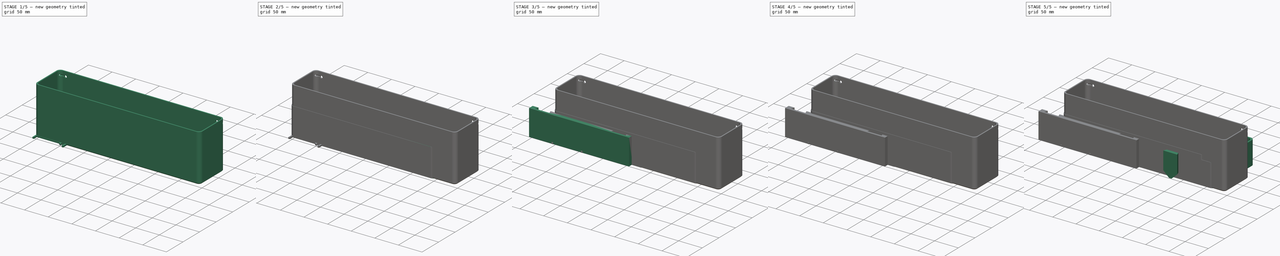
[diagram: build sequence overview — one tinted view per stage of 5, left to right]
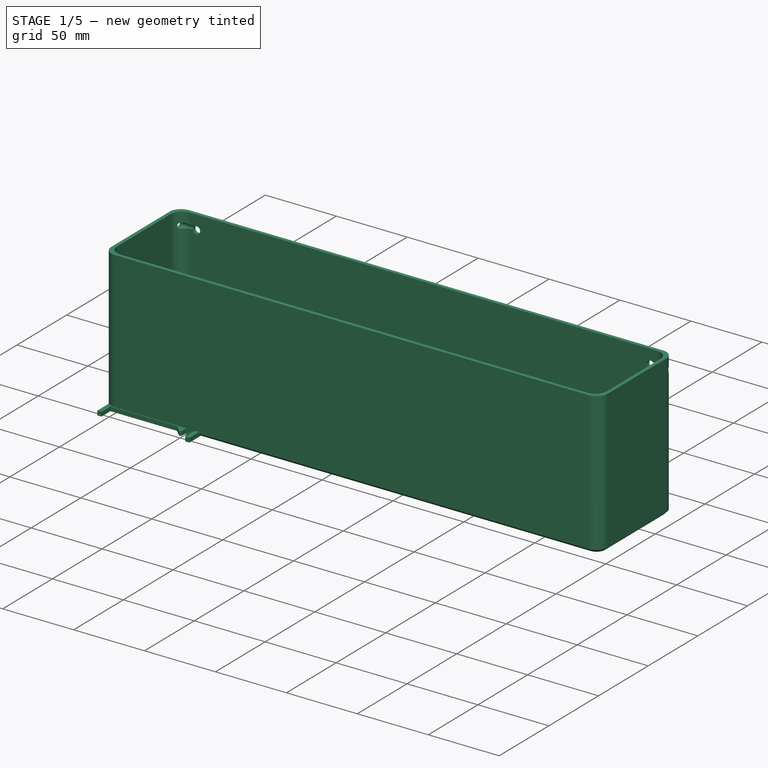
[diagram: stage 1 of 5 — iso view after this stage's code; geometry added in this stage tinted green]
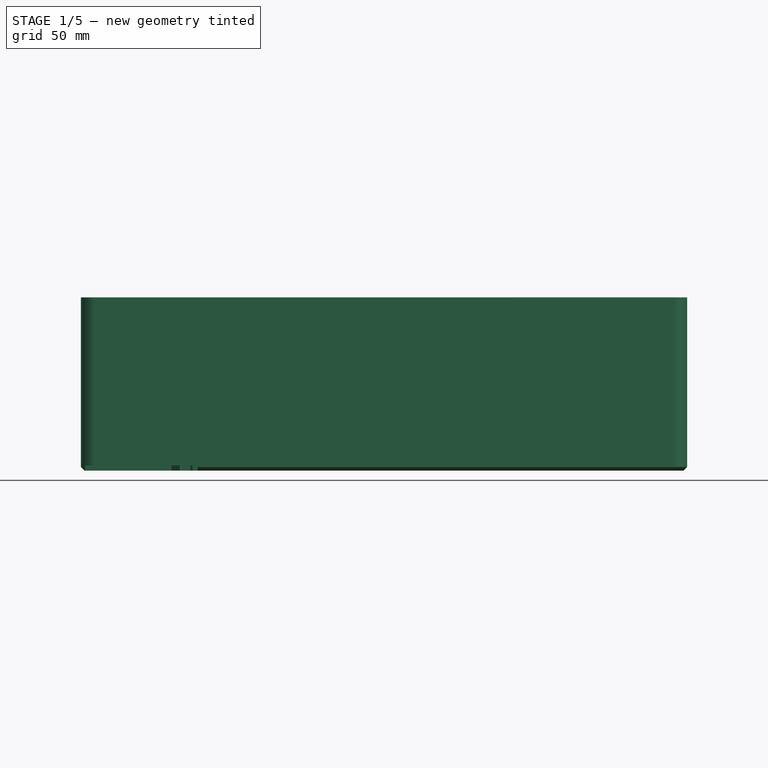
[diagram: stage 1 of 5 — front view after this stage's code; geometry added in this stage tinted green]
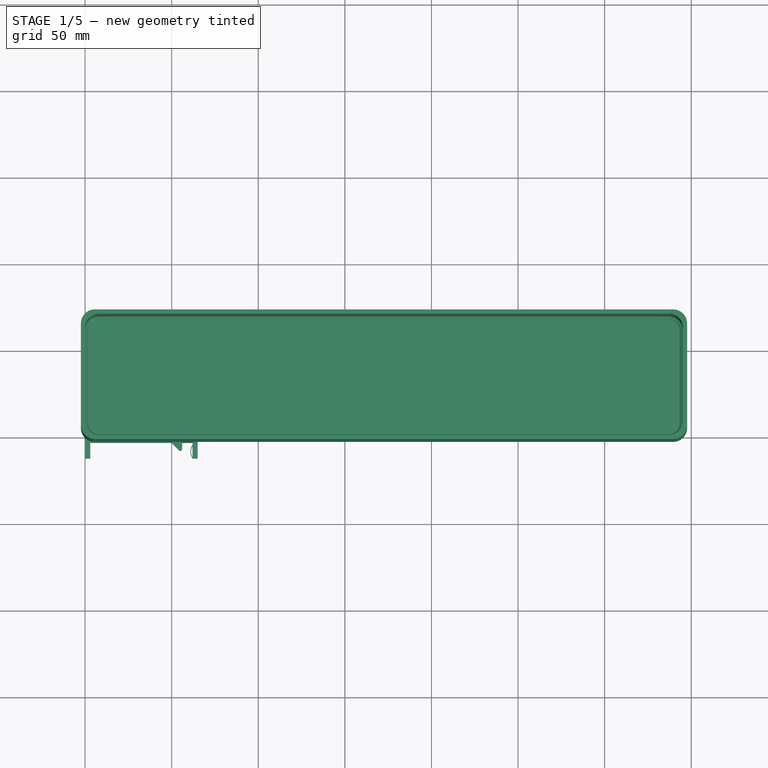
[diagram: stage 1 of 5 — top view after this stage's code; geometry added in this stage tinted green]
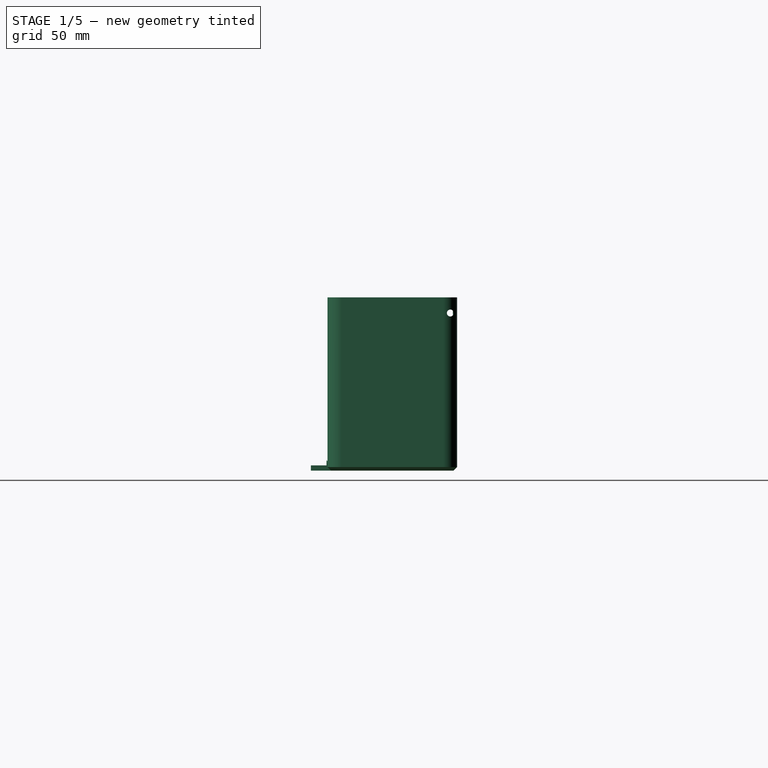
[diagram: stage 1 of 5 — right view after this stage's code; geometry added in this stage tinted green]
FCSTD DOCUMENT  (FreeCAD 1.0R39319 (Git))
Label: wallShelf
License: All rights reserved
LicenseURL: https://en.wikipedia.org/wiki/All_rights_reserved
objects: PartDesign::Pad×20, Sketcher::SketchObject×18, PartDesign::Body×12, PartDesign::Chamfer×11, PartDesign::Fillet×9, PartDesign::LinearPattern×6, Spreadsheet::Sheet×6, PartDesign::Pocket×6, PartDesign::SubtractiveBox×2, PartDesign::MultiTransform×2, PartDesign::Boolean×2, PartDesign::SubtractiveCylinder×1, PartDesign::AdditiveBox×1
note: 218 computed .brp shape members not serialized (recipe doc carries the construction recipe); baked Part::Feature solids carry a one-line shape summary decoded from their .brp

FEATURE [PartDesign::Body] Body009  label="shelf003"
  AllowCompound = false
  Group = -> [Sketch014,Pad015,Pad016,Fillet006,Sketch015,Pocket003,Pocket004,Chamfer007,Chamfer008]
  Origin = -> Origin009
  Tip = -> Chamfer008
FEATURE [Sketcher::SketchObject] Sketch016
  ArcFitTolerance = 1e-06
  AttachmentSupport = -> [XY_Plane012]
  FullyConstrained = false
  MakeInternals = false
  MapMode = 5
  sketch-geometry (12):
    g0: LineSegment StartX=0 StartY=0 StartZ=0 EndX=345.2 EndY=0 EndZ=0
    g1: LineSegment StartX=345.2 StartY=0 StartZ=0 EndX=345.2 EndY=70 EndZ=0
    g2: LineSegment StartX=345.2 StartY=70 StartZ=0 EndX=0 EndY=70 EndZ=0
    g3: LineSegment StartX=0 StartY=70 StartZ=0 EndX=0 EndY=0 EndZ=0
    g4: LineSegment StartX=-2.4 StartY=-2.4 StartZ=0 EndX=347.6 EndY=-2.4 EndZ=0
    g5: LineSegment StartX=347.6 StartY=-2.4 StartZ=0 EndX=347.6 EndY=72.4 EndZ=0
    g6: LineSegment StartX=347.6 StartY=72.4 StartZ=0 EndX=-2.4 EndY=72.4 EndZ=0
    g7: LineSegment StartX=-2.4 StartY=72.4 StartZ=0 EndX=-2.4 EndY=-2.4 EndZ=0
    g8: LineSegment [constr] StartX=174.61 StartY=72.4 StartZ=0 EndX=174.61 EndY=70 EndZ=0
    g9: LineSegment [constr] StartX=345.2 StartY=72.872 StartZ=0 EndX=347.6 EndY=72.872 EndZ=0
    g10: LineSegment [constr] StartX=172.186 StartY=0 StartZ=0 EndX=172.186 EndY=-2.4 EndZ=0
    g11: LineSegment [constr] StartX=0 StartY=76.4331 StartZ=0 EndX=-2.4 EndY=76.4331 EndZ=0
  constraints (35):
    c: Coincident(g0,g1)
    c: Coincident(g1,g2)
    c: Coincident(g2,g3)
    c: Coincident(g3,g0)
    c: Horizontal(g0)
    c: Horizontal(g2)
    c: Vertical(g1)
    c: Vertical(g3)
    c: Coincident(g0,g-1)
    c: DistanceY(g3,g3) = 70
    c: Coincident(g4,g5)
    c: Coincident(g5,g6)
    c: Coincident(g6,g7)
    c: Coincident(g7,g4)
    c: Horizontal(g4)
    c: Horizontal(g6)
    c: Vertical(g5)
    c: Vertical(g7)
    c: PointOnObject(g8,g6)
    c: PointOnObject(g8,g2)
    c: Vertical(g8)
    c: PointOnObject(g9,g1)
    c: PointOnObject(g9,g5)
    c: Horizontal(g9)
    c: Distance(g8,g8) = 2.4
    c: Distance(g9,g9) = 2.4
    c: PointOnObject(g10,g0)
    c: PointOnObject(g10,g4)
    c: Vertical(g10)
    c: PointOnObject(g11,g3)
    c: PointOnObject(g11,g7)
    c: Horizontal(g11)
    c: Distance(g11,g11) = 2.4
    c: Distance(g10,g10) = 2.4
    c: Distance(g4,g4) = 350
FEATURE [PartDesign::Pad] Pad017
  Direction = (0,0,1)
  Length = 100
  Length2 = 10
  Profile = -> Sketch016
  ReferenceAxis = -> Sketch016 [N_Axis]
  Refine = true
  Suppressed = false
  Type = 0
FEATURE [PartDesign::Pad] Pad018
  BaseFeature = -> Pad017
  Direction = (0,0,1)
  Length = 3
  Length2 = 10
  Profile = -> Sketch016 [Edge8,Edge5,Edge7,Edge6]
  ReferenceAxis = -> Sketch016 [N_Axis]
  Refine = true
  Suppressed = false
  Type = 0
FEATURE [Sketcher::SketchObject] Sketch017
  ArcFitTolerance = 1e-06
  ExternalGeometry = -> [Pad018]
  FullyConstrained = true
  MakeInternals = false
  MapMode = 5
  Placement = pos=(0,75,0) rot=(0,0.707107,0.707107;3.14159rad)
  sketch-geometry (3):
    g0: Circle CenterX=-12.6 CenterY=90 CenterZ=0 NormalX=0 NormalY=0 NormalZ=1 AngleXU=0 Radius=2.5
    g1: LineSegment [constr] StartX=-172.6 StartY=100 StartZ=0 EndX=-172.6 EndY=0 EndZ=0
    g2: Circle CenterX=-332.6 CenterY=90 CenterZ=0 NormalX=0 NormalY=0 NormalZ=1 AngleXU=0 Radius=2.5
  constraints (8):
    c: Diameter(g0) = 5
    c: Distance(g0,g-3) = 15
    c: Distance(g0,g-4) = 10
    c: Symmetric(g-4,g-4,g1)
    c: PointOnObject(g1,g-1)
    c: Vertical(g1)
    c: Symmetric(g2,g0,g1)
    c: Equal(g2,g0)
FEATURE [PartDesign::Pocket] Pocket005
  BaseFeature = -> Pad018
  Direction = (-1e-16,-1,2e-16)
  Length = 5
  Length2 = 5
  Profile = -> Sketch017
  ReferenceAxis = -> Sketch017 [N_Axis]
  Refine = true
  Suppressed = false
  Type = 0
FEATURE [PartDesign::Fillet] Fillet007
  Base = -> Pocket005 [Edge10,Edge13,Edge15,Edge11,Edge21,Edge20,Edge25,Edge23]
  BaseFeature = -> Pocket005
  Radius = 8
  Refine = true
  SupportTransform = false
  Suppressed = false
  UseAllEdges = false
FEATURE [PartDesign::Chamfer] Chamfer009
  Angle = 45
  Base = -> Fillet007 [Edge17,Edge50]
  BaseFeature = -> Fillet007
  ChamferType = 0
  FlipDirection = false
  Refine = true
  Size = 2
  Size2 = 1
  SupportTransform = false
  Suppressed = false
  UseAllEdges = false
FEATURE [PartDesign::SubtractiveCylinder] Cylinder
  Angle = 360
  AttacherType = Attacher::AttachEngine3D
  AttachmentOffset = pos=(-7,91,1.5) rot=(0,1,0;1.5708rad)
  AttachmentSupport = -> [Chamfer009]
  BaseFeature = -> Chamfer009
  FirstAngle = 0
  Height = 20
  MapMode = 5
  Placement = pos=(-7,68.5,91) rot=(0.57735,0.57735,0.57735;2.0944rad)
  Radius = 2
  Refine = true
  SecondAngle = 0
  Suppressed = false
FEATURE [PartDesign::LinearPattern] LinearPattern005
  BaseFeature = -> Cylinder
  Direction = -> X_Axis010
  Length = 340
  Mode = 0
  Occurrences = 2
  Offset = 340
  Originals = -> [Cylinder]
  Placement = pos=(-7,68.5,91) rot=(0.57735,0.57735,0.57735;2.0944rad)
  Refine = true
  Suppressed = false
  TransformMode = 0
FEATURE [PartDesign::Body] Body010  label="shelf004"
  AllowCompound = false
  Group = -> [Sketch016,Pad017,Pad018,Sketch017,Pocket005,Fillet007,Chamfer009,Cylinder,LinearPattern005]
  Origin = -> Origin010
  Tip = -> LinearPattern005
FEATURE [Sketcher::SketchObject] Sketch018
  ArcFitTolerance = 1e-06
  AttachmentSupport = -> [XY_Plane013]
  FullyConstrained = true
  MakeInternals = false
  MapMode = 5
  sketch-geometry (19):
    g0: LineSegment StartX=0 StartY=-12 StartZ=0 EndX=0 EndY=0 EndZ=0
    g1: LineSegment StartX=0 StartY=0 StartZ=0 EndX=65 EndY=0 EndZ=0
    g2: LineSegment StartX=65 StartY=0 StartZ=0 EndX=65 EndY=-12 EndZ=0
    g3: LineSegment StartX=65 StartY=-12 StartZ=0 EndX=62 EndY=-12 EndZ=0
    g4: LineSegment [constr] StartX=62 StartY=-12 StartZ=0 EndX=62 EndY=-3 EndZ=0
    g5: LineSegment [constr] StartX=62 StartY=-3 StartZ=0 EndX=3 EndY=-3 EndZ=0
    g6: LineSegment StartX=3 StartY=-3 StartZ=0 EndX=3 EndY=-12 EndZ=0
    g7: LineSegment StartX=3 StartY=-12 StartZ=0 EndX=0 EndY=-12 EndZ=0
    g8: LineSegment [constr] StartX=3 StartY=-12 StartZ=0 EndX=62 EndY=-12 EndZ=0
    g9: LineSegment [constr] StartX=32.5 StartY=0 StartZ=0 EndX=32.5 EndY=-12 EndZ=0
    g10: LineSegment [constr] StartX=3 StartY=0 StartZ=0 EndX=3 EndY=-3 EndZ=0
    g11: LineSegment StartX=62 StartY=-4.16163 StartZ=0 EndX=62 EndY=-3 EndZ=0
    g12: LineSegment StartX=62 StartY=-4.93121 StartZ=0 EndX=62 EndY=-11.2304 EndZ=0
    g13: ArcOfCircle CenterX=67.8 CenterY=-8.08082 CenterZ=0 NormalX=0 NormalY=0 NormalZ=1 AngleXU=0 Radius=6.6 StartAngle=2.64411 EndAngle=3.63907
    g14: ArcOfCircle CenterX=67.8 CenterY=-8.08082 CenterZ=0 NormalX=0 NormalY=0 NormalZ=1 AngleXU=0 Radius=7 StartAngle=2.54735 EndAngle=3.73584
    g15: LineSegment StartX=56 StartY=-3 StartZ=0 EndX=56 EndY=-9 EndZ=0
    g16: LineSegment StartX=56 StartY=-9 StartZ=0 EndX=50 EndY=-3 EndZ=0
    g17: LineSegment StartX=56 StartY=-3 StartZ=0 EndX=62 EndY=-3 EndZ=0
    g18: LineSegment StartX=50 StartY=-3 StartZ=0 EndX=3 EndY=-3 EndZ=0
  constraints (53):
    c: Vertical(g0)
    c: Coincident(g1,g0)
    c: PointOnObject(g1,g-1)
    c: Coincident(g2,g1)
    c: Vertical(g2)
    c: Coincident(g3,g2)
    c: Horizontal(g3)
    c: Vertical(g4)
    c: Horizontal(g5)
    c: Coincident(g6,g5)
    c: Vertical(g6)
    c: Coincident(g7,g6)
    c: Coincident(g7,g0)
    c: Horizontal(g7)
    c: Coincident(g8,g6)
    c: Coincident(g8,g3)
    c: Horizontal(g8)
    c: Coincident(g4,g5)
    c: Coincident(g4,g3)
    c: Coincident(g0,g-1)
    c: Distance(g3,g3) = 3
    c: DistanceX(g5,g5) = 59
    c: DistanceY(g2,g2) = 12
    c: PointOnObject(g11,g4)
    c: PointOnObject(g12,g4)
    c: PointOnObject(g12,g4)
    c: Symmetric(g1,g1,g9)
    c: Symmetric(g8,g8,g9)
    c: PointOnObject(g10,g1)
    c: Coincident(g10,g5)
    c: Vertical(g10)
    c: Distance(g10,g10) = 3
    c: Coincident(g11,g4)
    c: DistanceX(g7,g7) = 3
    c: Coincident(g13,g12)
    c: Coincident(g13,g12)
    c: Coincident(g14,g3)
    c: Coincident(g14,g11)
    c: Coincident(g13,g14)
    c: Distance(g14,g13) = 0.4
    c: Distance(g14,g12) = -1.2
    c: Radius(g14) = 7
    c: PointOnObject(g15,g5)
    c: Vertical(g15)
    c: Coincident(g16,g15)
    c: PointOnObject(g16,g5)
    c: Distance(g11,g15) = 6
    c: Coincident(g17,g15)
    c: Coincident(g17,g4)
    c: Coincident(g18,g16)
    c: Coincident(g18,g5)
    c: DistanceY(g15,g15) = 6
    c: Angle(g16,g5) = 0.785398
FEATURE [PartDesign::Pad] Pad019
  Direction = (0,0,1)
  Length = 3
  Length2 = 10
  Profile = -> Sketch018
  ReferenceAxis = -> Sketch018 [N_Axis]
  Refine = true
  Suppressed = false
  Type = 0
FEATURE [PartDesign::AdditiveBox] Box002
  AttacherType = Attacher::AttachEngine3D
  AttachmentOffset = pos=(0,0,0) rot=(0,0.707107,0.707107;3.14159rad)
  AttachmentSupport = -> [Pad019]
  BaseFeature = -> Pad019
  Height = 3
  Length = 6
  MapMode = 7
  Placement = pos=(62,-3,0) rot=(0,0.707107,0.707107;3.14159rad)
  Refine = true
  Suppressed = false
  Width = 6
FEATURE [PartDesign::Chamfer] Chamfer010
  Angle = 45
  Base = -> Box002 [Edge26]
  BaseFeature = -> Box002
  ChamferType = 0
  FlipDirection = false
  Placement = pos=(62,-3,0) rot=(0,0.707107,0.707107;3.14159rad)
  Refine = true
  Size = 2.99
  Size2 = 1
  SupportTransform = false
  Suppressed = false
  UseAllEdges = false
FEATURE [PartDesign::Fillet] Fillet008
  Base = -> Chamfer010 [Edge13,Edge2,Edge48]
  BaseFeature = -> Chamfer010
  Placement = pos=(62,-3,0) rot=(0,0.707107,0.707107;3.14159rad)
  Radius = 1
  Refine = true
  SupportTransform = false
  Suppressed = false
  UseAllEdges = false
FEATURE [PartDesign::Body] Body011  label="Separator"
  AllowCompound = false
  Group = -> [Sketch018,Pad019,Box002,Chamfer010,Fillet008]
  Origin = -> Origin011
  Tip = -> Fillet008
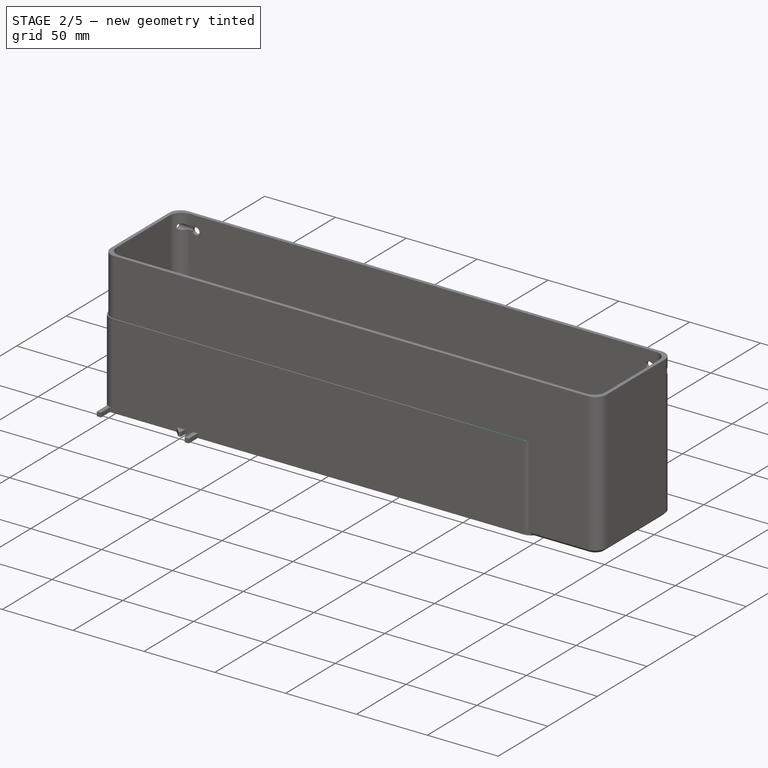
[diagram: stage 2 of 5 — iso view after this stage's code; geometry added in this stage tinted green]
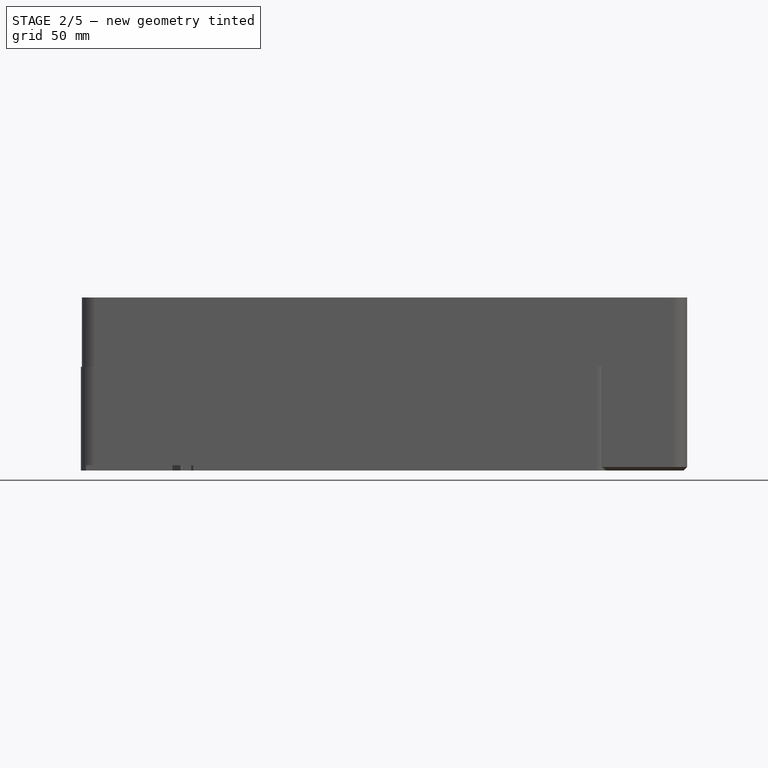
[diagram: stage 2 of 5 — front view after this stage's code; geometry added in this stage tinted green]
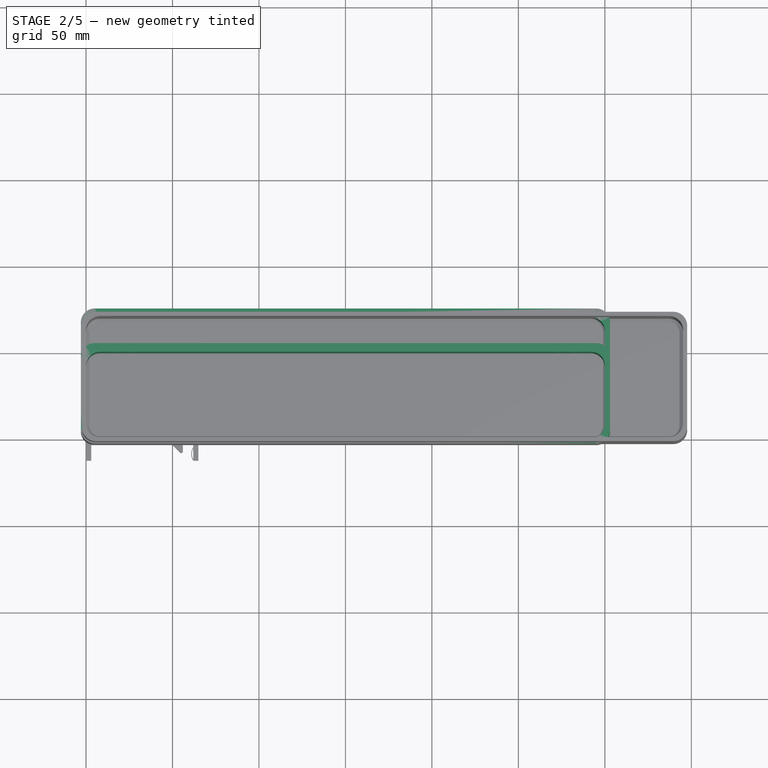
[diagram: stage 2 of 5 — top view after this stage's code; geometry added in this stage tinted green]
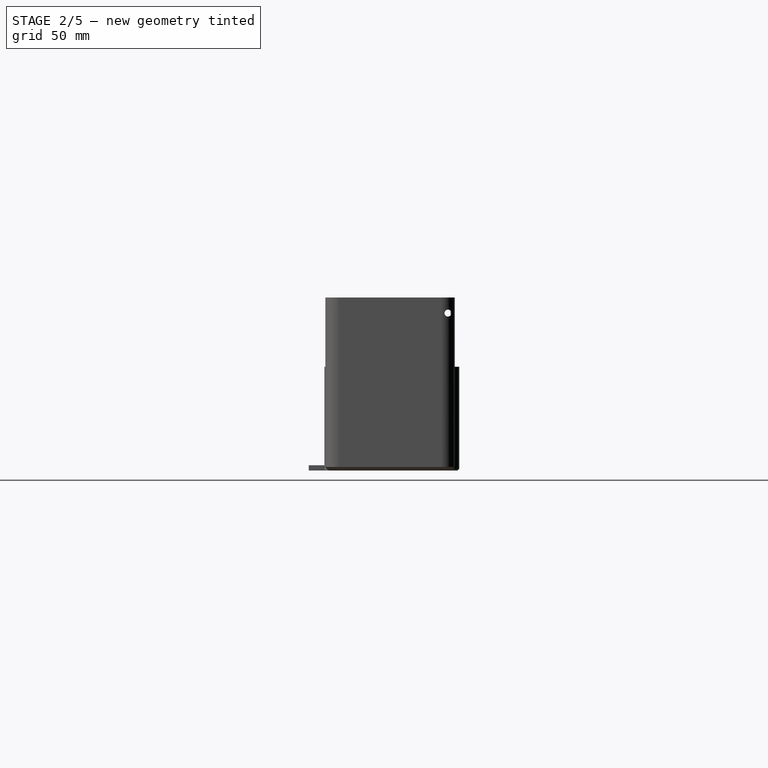
[diagram: stage 2 of 5 — right view after this stage's code; geometry added in this stage tinted green]
FEATURE [PartDesign::Body] Body007  label="onePiece_mount"
  AllowCompound = false
  Group = -> [Sketch010,Pad012,Boolean001]
  Origin = -> Origin007
  Placement = pos=(97,-3.15,-5) rot=(0,0,1;0rad)
  Tip = -> Boolean001
FEATURE [Sketcher::SketchObject] Sketch011
  ArcFitTolerance = 1e-06
  AttachmentSupport = -> [XY_Plane010]
  FullyConstrained = false
  MakeInternals = false
  MapMode = 5
  sketch-geometry (12):
    g0: LineSegment StartX=0 StartY=0 StartZ=0 EndX=300 EndY=0 EndZ=0
    g1: LineSegment StartX=300 StartY=0 StartZ=0 EndX=300 EndY=50 EndZ=0
    g2: LineSegment StartX=300 StartY=50 StartZ=0 EndX=0 EndY=50 EndZ=0
    g3: LineSegment StartX=0 StartY=50 StartZ=0 EndX=0 EndY=0 EndZ=0
    g4: LineSegment StartX=-3 StartY=-3 StartZ=0 EndX=303 EndY=-3 EndZ=0
    g5: LineSegment StartX=303 StartY=-3 StartZ=0 EndX=303 EndY=55 EndZ=0
    g6: LineSegment StartX=303 StartY=55 StartZ=0 EndX=-3 EndY=55 EndZ=0
    g7: LineSegment StartX=-3 StartY=55 StartZ=0 EndX=-3 EndY=-3 EndZ=0
    g8: LineSegment [constr] StartX=174.61 StartY=55 StartZ=0 EndX=174.61 EndY=50 EndZ=0
    g9: LineSegment [constr] StartX=300 StartY=72.872 StartZ=0 EndX=303 EndY=72.872 EndZ=0
    g10: LineSegment [constr] StartX=172.186 StartY=0 StartZ=0 EndX=172.186 EndY=-3 EndZ=0
    g11: LineSegment [constr] StartX=0 StartY=76.4331 StartZ=0 EndX=-3 EndY=76.4331 EndZ=0
  constraints (35):
    c: Coincident(g0,g1)
    c: Coincident(g1,g2)
    c: Coincident(g2,g3)
    c: Coincident(g3,g0)
    c: Horizontal(g0)
    c: Horizontal(g2)
    c: Vertical(g1)
    c: Vertical(g3)
    c: Coincident(g0,g-1)
    c: DistanceY(g3,g3) = 50
    c: Coincident(g4,g5)
    c: Coincident(g5,g6)
    c: Coincident(g6,g7)
    c: Coincident(g7,g4)
    c: Horizontal(g4)
    c: Horizontal(g6)
    c: Vertical(g5)
    c: Vertical(g7)
    c: PointOnObject(g8,g6)
    c: PointOnObject(g8,g2)
    c: Vertical(g8)
    c: PointOnObject(g9,g1)
    c: PointOnObject(g9,g5)
    c: Horizontal(g9)
    c: Distance(g8,g8) = 5
    c: Distance(g9,g9) = 3
    c: PointOnObject(g10,g0)
    c: PointOnObject(g10,g4)
    c: Vertical(g10)
    c: PointOnObject(g11,g3)
    c: PointOnObject(g11,g7)
    c: Horizontal(g11)
    c: Distance(g11,g11) = 3
    c: Distance(g10,g10) = 3
    c: DistanceX(g0,g0) = 300
FEATURE [PartDesign::Pad] Pad013
  Direction = (0,0,1)
  Length = 60
  Length2 = 10
  Profile = -> Sketch011
  ReferenceAxis = -> Sketch011 [N_Axis]
  Refine = true
  Suppressed = false
  Type = 0
FEATURE [PartDesign::Pad] Pad014
  BaseFeature = -> Pad013
  Direction = (0,0,1)
  Length = 3
  Length2 = 10
  Profile = -> Sketch011 [Edge8,Edge5,Edge7,Edge6]
  ReferenceAxis = -> Sketch011 [N_Axis]
  Refine = true
  Suppressed = false
  Type = 0
FEATURE [PartDesign::Fillet] Fillet005
  Base = -> Pad014 [Edge24,Edge23,Edge19,Edge18,Edge13,Edge10,Edge11,Edge15]
  BaseFeature = -> Pad014
  Radius = 8
  Refine = true
  SupportTransform = false
  Suppressed = false
  UseAllEdges = false
FEATURE [Sketcher::SketchObject] Sketch013
  ArcFitTolerance = 1e-06
  AttachmentSupport = -> [Fillet005]
  ExternalGeometry = -> [Fillet005]
  FullyConstrained = false
  MakeInternals = false
  MapMode = 5
  Placement = pos=(0,55,0) rot=(0,0.707107,0.707107;3.14159rad)
  sketch-geometry (15):
    g0: Circle CenterX=-17 CenterY=50 CenterZ=0 NormalX=0 NormalY=0 NormalZ=1 AngleXU=0 Radius=2.5
    g1: Circle CenterX=-27 CenterY=50 CenterZ=0 NormalX=0 NormalY=0 NormalZ=1 AngleXU=0 Radius=2.5
    g2: LineSegment [constr] StartX=-27 StartY=50 StartZ=0 EndX=-17 EndY=50 EndZ=0
    g3: LineSegment StartX=-27 StartY=52.5 StartZ=0 EndX=-27 EndY=47.5 EndZ=0
    g4: LineSegment StartX=-27 StartY=47.5 StartZ=0 EndX=-17 EndY=47.5 EndZ=0
    g5: LineSegment StartX=-17 StartY=47.5 StartZ=0 EndX=-17 EndY=52.5 EndZ=0
    g6: LineSegment StartX=-27 StartY=52.5 StartZ=0 EndX=-17 EndY=52.5 EndZ=0
    g7: LineSegment [constr] StartX=-150 StartY=60 StartZ=0 EndX=-150 EndY=-56.9087 EndZ=0
    g8: Circle CenterX=-283 CenterY=50 CenterZ=0 NormalX=0 NormalY=0 NormalZ=1 AngleXU=0 Radius=2.5
    g9: Circle CenterX=-273 CenterY=50 CenterZ=0 NormalX=0 NormalY=0 NormalZ=1 AngleXU=0 Radius=2.5
    g10: LineSegment [constr] StartX=-273 StartY=50 StartZ=0 EndX=-283 EndY=50 EndZ=0
    g11: LineSegment StartX=-273 StartY=52.5 StartZ=0 EndX=-273 EndY=47.5 EndZ=0
    g12: LineSegment StartX=-273 StartY=47.5 StartZ=0 EndX=-283 EndY=47.5 EndZ=0
    g13: LineSegment StartX=-283 StartY=47.5 StartZ=0 EndX=-283 EndY=52.5 EndZ=0
    g14: LineSegment StartX=-273 StartY=52.5 StartZ=0 EndX=-283 EndY=52.5 EndZ=0
  constraints (39):
    c: Distance(g0,g-4) = 20
    c: Diameter(g0) = 5
    c: Distance(g0,g-3) = 10
    c: Equal(g1,g0)
    c: Coincident(g2,g1)
    c: Coincident(g2,g0)
    c: Horizontal(g2)
    c: DistanceX(g2,g2) = 10
    c: PointOnObject(g3,g1)
    c: PointOnObject(g3,g1)
    c: Vertical(g3)
    c: Coincident(g4,g3)
    c: PointOnObject(g4,g0)
    c: Horizontal(g4)
    c: Coincident(g5,g4)
    c: PointOnObject(g5,g0)
    c: Vertical(g5)
    c: Coincident(g6,g3)
    c: Coincident(g6,g5)
    c: PointOnObject(g1,g3)
    c: Symmetric(g-3,g-3,g7)
    c: Vertical(g7)
    c: Diameter(g8) = 5
    c: Equal(g9,g8)
    c: Coincident(g10,g9)
    c: Coincident(g10,g8)
    c: Horizontal(g10)
    c: PointOnObject(g11,g9)
    c: PointOnObject(g11,g9)
    c: Vertical(g11)
    c: Coincident(g12,g11)
    c: PointOnObject(g12,g8)
    c: Horizontal(g12)
    c: Coincident(g13,g12)
    c: PointOnObject(g13,g8)
    c: Vertical(g13)
    c: Coincident(g14,g11)
    c: Coincident(g14,g13)
    c: PointOnObject(g9,g11)
FEATURE [PartDesign::Pocket] Pocket001
  BaseFeature = -> Fillet005
  Direction = (0,-1,2e-16)
  Length = 5
  Length2 = 5
  Profile = -> Sketch013 [Edge8,Edge7,Edge2,Edge1]
  ReferenceAxis = -> Sketch013 [N_Axis]
  Refine = true
  Suppressed = false
  Type = 0
FEATURE [PartDesign::Body] Body008  label="shelf002"
  AllowCompound = false
  Group = -> [Sketch011,Pad013,Pad014,Fillet005,Sketch013,Pocket001,Pocket002,Chamfer005,Chamfer006]
  Origin = -> Origin008
  Tip = -> Chamfer006
FEATURE [Sketcher::SketchObject] Sketch014
  ArcFitTolerance = 1e-06
  AttachmentSupport = -> [XY_Plane011]
  FullyConstrained = false
  MakeInternals = false
  MapMode = 5
  sketch-geometry (12):
    g0: LineSegment StartX=0 StartY=0 StartZ=0 EndX=300 EndY=0 EndZ=0
    g1: LineSegment StartX=300 StartY=0 StartZ=0 EndX=300 EndY=70 EndZ=0
    g2: LineSegment StartX=300 StartY=70 StartZ=0 EndX=0 EndY=70 EndZ=0
    g3: LineSegment StartX=0 StartY=70 StartZ=0 EndX=0 EndY=0 EndZ=0
    g4: LineSegment StartX=-3 StartY=-3 StartZ=0 EndX=303 EndY=-3 EndZ=0
    g5: LineSegment StartX=303 StartY=-3 StartZ=0 EndX=303 EndY=75 EndZ=0
    g6: LineSegment StartX=303 StartY=75 StartZ=0 EndX=-3 EndY=75 EndZ=0
    g7: LineSegment StartX=-3 StartY=75 StartZ=0 EndX=-3 EndY=-3 EndZ=0
    g8: LineSegment [constr] StartX=174.61 StartY=75 StartZ=0 EndX=174.61 EndY=70 EndZ=0
    g9: LineSegment [constr] StartX=300 StartY=72.872 StartZ=0 EndX=303 EndY=72.872 EndZ=0
    g10: LineSegment [constr] StartX=172.186 StartY=0 StartZ=0 EndX=172.186 EndY=-3 EndZ=0
    g11: LineSegment [constr] StartX=0 StartY=76.4331 StartZ=0 EndX=-3 EndY=76.4331 EndZ=0
  constraints (35):
    c: Coincident(g0,g1)
    c: Coincident(g1,g2)
    c: Coincident(g2,g3)
    c: Coincident(g3,g0)
    c: Horizontal(g0)
    c: Horizontal(g2)
    c: Vertical(g1)
    c: Vertical(g3)
    c: Coincident(g0,g-1)
    c: DistanceY(g3,g3) = 70
    c: Coincident(g4,g5)
    c: Coincident(g5,g6)
    c: Coincident(g6,g7)
    c: Coincident(g7,g4)
    c: Horizontal(g4)
    c: Horizontal(g6)
    c: Vertical(g5)
    c: Vertical(g7)
    c: PointOnObject(g8,g6)
    c: PointOnObject(g8,g2)
    c: Vertical(g8)
    c: PointOnObject(g9,g1)
    c: PointOnObject(g9,g5)
    c: Horizontal(g9)
    c: Distance(g8,g8) = 5
    c: Distance(g9,g9) = 3
    c: PointOnObject(g10,g0)
    c: PointOnObject(g10,g4)
    c: Vertical(g10)
    c: PointOnObject(g11,g3)
    c: PointOnObject(g11,g7)
    c: Horizontal(g11)
    c: Distance(g11,g11) = 3
    c: Distance(g10,g10) = 3
    c: DistanceX(g0,g0) = 300
FEATURE [PartDesign::Pad] Pad015
  Direction = (0,0,1)
  Length = 60
  Length2 = 10
  Profile = -> Sketch014
  ReferenceAxis = -> Sketch014 [N_Axis]
  Refine = true
  Suppressed = false
  Type = 0
FEATURE [PartDesign::Pad] Pad016
  BaseFeature = -> Pad015
  Direction = (0,0,1)
  Length = 3
  Length2 = 10
  Profile = -> Sketch014 [Edge8,Edge5,Edge7,Edge6]
  ReferenceAxis = -> Sketch014 [N_Axis]
  Refine = true
  Suppressed = false
  Type = 0
FEATURE [PartDesign::Fillet] Fillet006
  Base = -> Pad016 [Edge24,Edge23,Edge19,Edge18,Edge13,Edge10,Edge11,Edge15]
  BaseFeature = -> Pad016
  Radius = 8
  Refine = true
  SupportTransform = false
  Suppressed = false
  UseAllEdges = false
FEATURE [Sketcher::SketchObject] Sketch015
  ArcFitTolerance = 1e-06
  AttachmentSupport = -> [Fillet006]
  ExternalGeometry = -> [Fillet006]
  FullyConstrained = false
  MakeInternals = false
  MapMode = 5
  Placement = pos=(0,75,0) rot=(0,0.707107,0.707107;3.14159rad)
  sketch-geometry (15):
    g0: Circle CenterX=-17 CenterY=50 CenterZ=0 NormalX=0 NormalY=0 NormalZ=1 AngleXU=0 Radius=2.5
    g1: Circle CenterX=-27 CenterY=50 CenterZ=0 NormalX=0 NormalY=0 NormalZ=1 AngleXU=0 Radius=2.5
    g2: LineSegment [constr] StartX=-27 StartY=50 StartZ=0 EndX=-17 EndY=50 EndZ=0
    g3: LineSegment StartX=-27 StartY=52.5 StartZ=0 EndX=-27 EndY=47.5 EndZ=0
    g4: LineSegment StartX=-27 StartY=47.5 StartZ=0 EndX=-17 EndY=47.5 EndZ=0
    g5: LineSegment StartX=-17 StartY=47.5 StartZ=0 EndX=-17 EndY=52.5 EndZ=0
    g6: LineSegment StartX=-27 StartY=52.5 StartZ=0 EndX=-17 EndY=52.5 EndZ=0
    g7: LineSegment [constr] StartX=-150 StartY=60 StartZ=0 EndX=-150 EndY=-56.9087 EndZ=0
    g8: Circle CenterX=-283 CenterY=50 CenterZ=0 NormalX=0 NormalY=0 NormalZ=1 AngleXU=0 Radius=2.5
    g9: Circle CenterX=-273 CenterY=50 CenterZ=0 NormalX=0 NormalY=0 NormalZ=1 AngleXU=0 Radius=2.5
    g10: LineSegment [constr] StartX=-273 StartY=50 StartZ=0 EndX=-283 EndY=50 EndZ=0
    g11: LineSegment StartX=-273 StartY=52.5 StartZ=0 EndX=-273 EndY=47.5 EndZ=0
    g12: LineSegment StartX=-273 StartY=47.5 StartZ=0 EndX=-283 EndY=47.5 EndZ=0
    g13: LineSegment StartX=-283 StartY=47.5 StartZ=0 EndX=-283 EndY=52.5 EndZ=0
    g14: LineSegment StartX=-273 StartY=52.5 StartZ=0 EndX=-283 EndY=52.5 EndZ=0
  constraints (39):
    c: Distance(g0,g-4) = 20
    c: Diameter(g0) = 5
    c: Distance(g0,g-3) = 10
    c: Equal(g1,g0)
    c: Coincident(g2,g1)
    c: Coincident(g2,g0)
    c: Horizontal(g2)
    c: DistanceX(g2,g2) = 10
    c: PointOnObject(g3,g1)
    c: PointOnObject(g3,g1)
    c: Vertical(g3)
    c: Coincident(g4,g3)
    c: PointOnObject(g4,g0)
    c: Horizontal(g4)
    c: Coincident(g5,g4)
    c: PointOnObject(g5,g0)
    c: Vertical(g5)
    c: Coincident(g6,g3)
    c: Coincident(g6,g5)
    c: PointOnObject(g1,g3)
    c: Symmetric(g-3,g-3,g7)
    c: Vertical(g7)
    c: Diameter(g8) = 5
    c: Equal(g9,g8)
    c: Coincident(g10,g9)
    c: Coincident(g10,g8)
    c: Horizontal(g10)
    c: PointOnObject(g11,g9)
    c: PointOnObject(g11,g9)
    c: Vertical(g11)
    c: Coincident(g12,g11)
    c: PointOnObject(g12,g8)
    c: Horizontal(g12)
    c: Coincident(g13,g12)
    c: PointOnObject(g13,g8)
    c: Vertical(g13)
    c: Coincident(g14,g11)
    c: Coincident(g14,g13)
    c: PointOnObject(g9,g11)
FEATURE [PartDesign::Pocket] Pocket003
  BaseFeature = -> Fillet006
  Direction = (0,-1,2e-16)
  Length = 5
  Length2 = 5
  Profile = -> Sketch015 [Edge8,Edge7,Edge2,Edge1]
  ReferenceAxis = -> Sketch015 [N_Axis]
  Refine = true
  Suppressed = false
  Type = 0
FEATURE [PartDesign::Pocket] Pocket004
  BaseFeature = -> Pocket003
  Direction = (0,-1,2e-16)
  Length = 5
  Length2 = -4.5
  Profile = -> Sketch015 [Edge6,Edge3,Edge4,Edge5,Edge11,Edge12,Edge9,Edge10]
  ReferenceAxis = -> Sketch015 [N_Axis]
  Refine = true
  Suppressed = false
  Type = 4
FEATURE [PartDesign::Chamfer] Chamfer007
  Angle = 45
  Base = -> Pocket004 [Edge56,Edge61]
  BaseFeature = -> Pocket004
  ChamferType = 1
  FlipDirection = false
  Refine = true
  Size = 1
  Size2 = 0.499
  SupportTransform = false
  Suppressed = false
  UseAllEdges = false
FEATURE [PartDesign::Chamfer] Chamfer008
  Angle = 45
  Base = -> Chamfer007 [Edge76,Edge28]
  BaseFeature = -> Chamfer007
  ChamferType = 0
  FlipDirection = false
  Refine = true
  Size = 1
  Size2 = 1
  SupportTransform = false
  Suppressed = false
  UseAllEdges = false
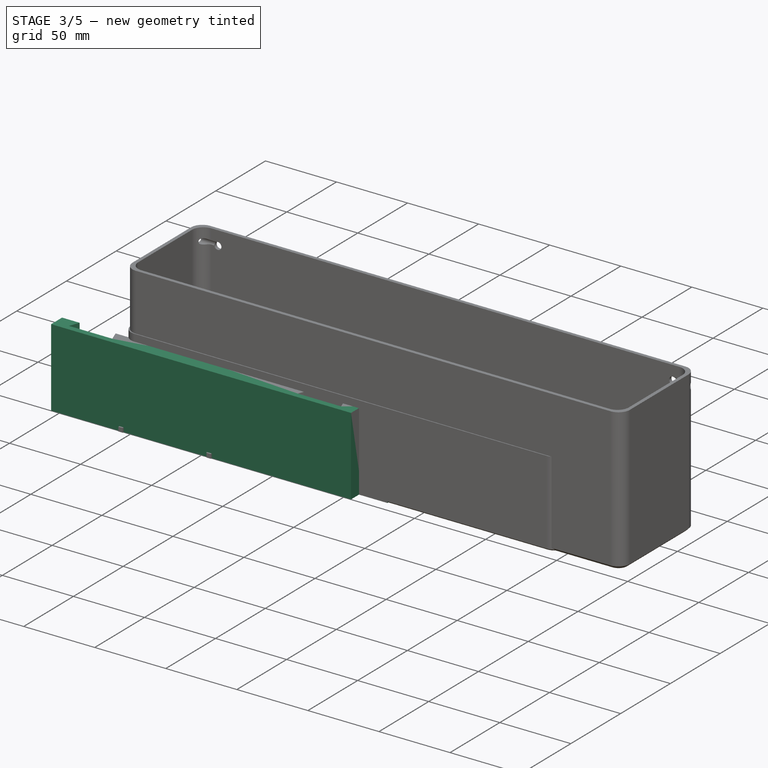
[diagram: stage 3 of 5 — iso view after this stage's code; geometry added in this stage tinted green]
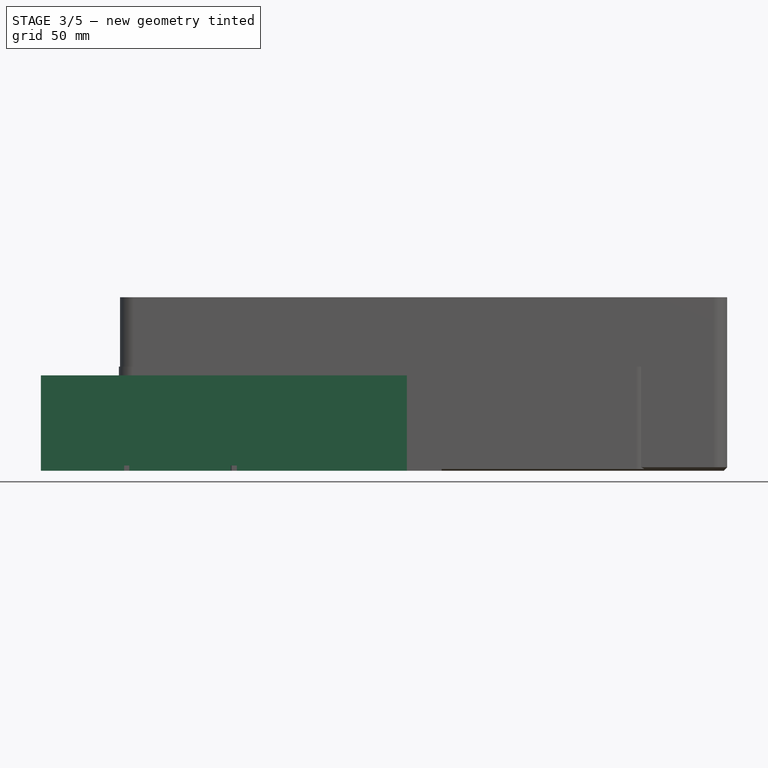
[diagram: stage 3 of 5 — front view after this stage's code; geometry added in this stage tinted green]
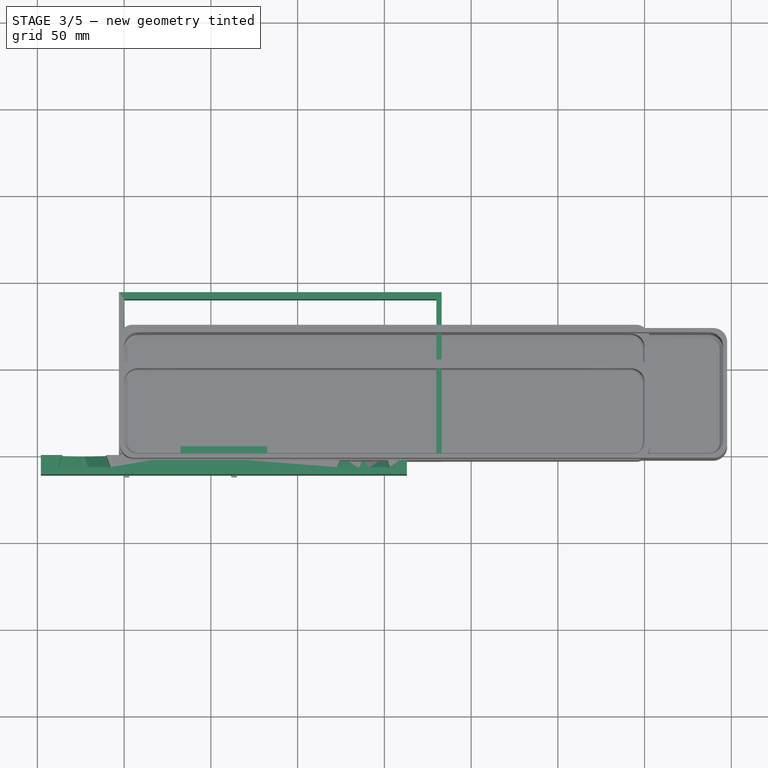
[diagram: stage 3 of 5 — top view after this stage's code; geometry added in this stage tinted green]
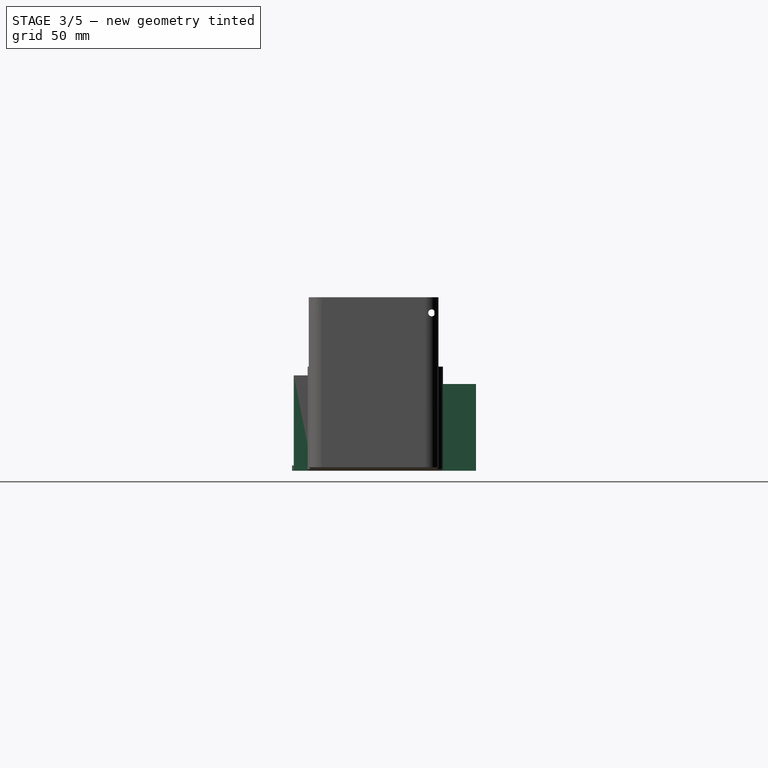
[diagram: stage 3 of 5 — right view after this stage's code; geometry added in this stage tinted green]
FEATURE [PartDesign::Body] Body  label="shelf"
  AllowCompound = false
  Group = -> [Sketch,Pad,Pad001,Fillet,Box,Fillet001,MultiTransform,LinearPattern,LinearPattern001,Boolean]
  Origin = -> Origin
  Tip = -> Boolean
FEATURE [PartDesign::LinearPattern] LinearPattern002
  Direction = -> X_Axis004
  Length = 90
  Mode = 0
  Occurrences = 2
  Offset = 90
  Placement = pos=(20,20,0) rot=(0,0,1;0rad)
  Refine = true
  Suppressed = false
  TransformMode = 0
FEATURE [PartDesign::LinearPattern] LinearPattern003
  Direction = -> Y_Axis004
  Length = 40
  Mode = 0
  Occurrences = 2
  Offset = 40
  Placement = pos=(20,20,0) rot=(0,0,1;0rad)
  Refine = true
  Suppressed = false
  TransformMode = 0
FEATURE [Sketcher::SketchObject] Sketch004
  ArcFitTolerance = 1e-06
  AttachmentSupport = -> [XY_Plane004]
  FullyConstrained = false
  MakeInternals = false
  MapMode = 5
  sketch-geometry (12):
    g0: LineSegment StartX=0 StartY=0 StartZ=0 EndX=180 EndY=0 EndZ=0
    g1: LineSegment StartX=180 StartY=0 StartZ=0 EndX=180 EndY=90 EndZ=0
    g2: LineSegment StartX=180 StartY=90 StartZ=0 EndX=0 EndY=90 EndZ=0
    g3: LineSegment StartX=0 StartY=90 StartZ=0 EndX=0 EndY=0 EndZ=0
    g4: LineSegment StartX=-3 StartY=-3 StartZ=0 EndX=183 EndY=-3 EndZ=0
    g5: LineSegment StartX=183 StartY=-3 StartZ=0 EndX=183 EndY=94 EndZ=0
    g6: LineSegment StartX=183 StartY=94 StartZ=0 EndX=-3 EndY=94 EndZ=0
    g7: LineSegment StartX=-3 StartY=94 StartZ=0 EndX=-3 EndY=-3 EndZ=0
    g8: LineSegment [constr] StartX=177.741 StartY=94 StartZ=0 EndX=177.741 EndY=90 EndZ=0
    g9: LineSegment [constr] StartX=180 StartY=72.872 StartZ=0 EndX=183 EndY=72.872 EndZ=0
    g10: LineSegment [constr] StartX=172.186 StartY=0 StartZ=0 EndX=172.186 EndY=-3 EndZ=0
    g11: LineSegment [constr] StartX=0 StartY=76.4331 StartZ=0 EndX=-3 EndY=76.4331 EndZ=0
  constraints (35):
    c: Coincident(g0,g1)
    c: Coincident(g1,g2)
    c: Coincident(g2,g3)
    c: Coincident(g3,g0)
    c: Horizontal(g0)
    c: Horizontal(g2)
    c: Vertical(g1)
    c: Vertical(g3)
    c: Coincident(g0,g-1)
    c: DistanceX(g0,g0) = 180
    c: DistanceY(g3,g3) = 90
    c: Coincident(g4,g5)
    c: Coincident(g5,g6)
    c: Coincident(g6,g7)
    c: Coincident(g7,g4)
    c: Horizontal(g4)
    c: Horizontal(g6)
    c: Vertical(g5)
    c: Vertical(g7)
    c: PointOnObject(g8,g6)
    c: PointOnObject(g8,g2)
    c: Vertical(g8)
    c: PointOnObject(g9,g1)
    c: PointOnObject(g9,g5)
    c: Horizontal(g9)
    c: Distance(g8,g8) = 4
    c: Distance(g9,g9) = 3
    c: PointOnObject(g10,g0)
    c: PointOnObject(g10,g4)
    c: Vertical(g10)
    c: PointOnObject(g11,g3)
    c: PointOnObject(g11,g7)
    c: Horizontal(g11)
    c: Distance(g11,g11) = 3
    c: Distance(g10,g10) = 3
FEATURE [PartDesign::Pad] Pad006
  Direction = (0,0,1)
  Length = 50
  Length2 = 10
  Profile = -> Sketch004
  ReferenceAxis = -> Sketch004 [N_Axis]
  Refine = true
  Suppressed = false
  Type = 0
FEATURE [PartDesign::Body] Body004  label="shelf001"
  AllowCompound = false
  Group = -> [Sketch004,Pad006,Pad007,Fillet002,Box001,Fillet003,MultiTransform001,LinearPattern002,LinearPattern003,Sketch005,Pocket,Fillet004,LinearPattern004]
  Origin = -> Origin004
  Tip = -> LinearPattern004
FEATURE [Sketcher::SketchObject] Sketch006
  ArcFitTolerance = 1e-06
  AttachmentSupport = -> [XY_Plane005]
  FullyConstrained = true
  MakeInternals = false
  MapMode = 5
  expr: Constraints[26] = <<mea004>>.tolerance
  expr: Constraints[27] = <<mea004>>.tolerance
  expr: Constraints[28] = <<mea004>>.tolerance
  expr: Constraints[29] = <<mea004>>.tolerance
  expr: Constraints[45] = <<mea004>>.wallMountBaseThickness
  sketch-geometry (20):
    g0: LineSegment StartX=0 StartY=0 StartZ=0 EndX=0 EndY=-3 EndZ=0
    g1: LineSegment StartX=0 StartY=-3 StartZ=0 EndX=50 EndY=-3 EndZ=0
    g2: LineSegment StartX=50 StartY=-3 StartZ=0 EndX=50 EndY=1.8e-15 EndZ=0
    g3: LineSegment StartX=50 StartY=1.6e-15 StartZ=0 EndX=37.4522 EndY=1.6e-15 EndZ=0
    g4: LineSegment StartX=12.5478 StartY=0 StartZ=0 EndX=10 EndY=7 EndZ=0
    g5: LineSegment StartX=10 StartY=7 StartZ=0 EndX=40 EndY=7 EndZ=0
    g6: LineSegment StartX=40 StartY=7 StartZ=0 EndX=37.4522 EndY=1.8e-15 EndZ=0
    g7: LineSegment [constr] StartX=50 StartY=1.6e-15 StartZ=0 EndX=50 EndY=0.15 EndZ=0
    g8: LineSegment StartX=50 StartY=0.15 StartZ=0 EndX=37.6664 EndY=0.15 EndZ=0
    g9: LineSegment StartX=37.6664 StartY=0.15 StartZ=0 EndX=40.2142 EndY=7.15 EndZ=0
    g10: LineSegment [constr] StartX=0 StartY=0 StartZ=0 EndX=0 EndY=0.15 EndZ=0
    g11: LineSegment StartX=0 StartY=0.15 StartZ=0 EndX=12.3336 EndY=0.15 EndZ=0
    g12: LineSegment StartX=12.3336 StartY=0.15 StartZ=0 EndX=9.78578 EndY=7.15 EndZ=0
    g13: LineSegment StartX=9.78578 StartY=7.15 StartZ=0 EndX=40.2142 EndY=7.15 EndZ=0
    g14: LineSegment [constr] StartX=25 StartY=8e-16 StartZ=0 EndX=25 EndY=-3 EndZ=0
    g15: LineSegment StartX=50 StartY=0.15 StartZ=0 EndX=50 EndY=11.15 EndZ=0
    g16: LineSegment StartX=0 StartY=0.15 StartZ=0 EndX=0 EndY=11.15 EndZ=0
    g17: LineSegment StartX=0 StartY=11.15 StartZ=0 EndX=50 EndY=11.15 EndZ=0
    g18: LineSegment StartX=12.5478 StartY=0 StartZ=0 EndX=0 EndY=0 EndZ=0
    g19: LineSegment StartX=12.3336 StartY=0.15 StartZ=0 EndX=37.6664 EndY=0.15 EndZ=0
  constraints (53):
    c: Coincident(g0,g1)
    c: Coincident(g1,g2)
    c: Coincident(g2,g3)
    c: Coincident(g18,g0)
    c: Vertical(g0)
    c: Vertical(g2)
    c: Horizontal(g1)
    c: Horizontal(g3)
    c: Coincident(g0,g-1)
    c: PointOnObject(g4,g18)
    c: Coincident(g6,g5)
    c: Coincident(g7,g2)
    c: Vertical(g7)
    c: Horizontal(g8)
    c: Coincident(g10,g0)
    c: PointOnObject(g10,g-2)
    c: Horizontal(g13)
    c: Coincident(g9,g13)
    c: Coincident(g12,g13)
    c: Coincident(g12,g11)
    c: Coincident(g11,g10)
    c: Coincident(g8,g7)
    c: Coincident(g8,g9)
    c: Coincident(g4,g5)
    c: Parallel(g6,g9)
    c: Parallel(g12,g4)
    c: Distance(g3,g11) = 0.15
    c: Distance(g4,g12) = 0.15
    c: Distance(g13,g5) = 0.15
    c: Distance(g9,g6) = 0.15
    c: Tangent(g8,g11)
    c: Symmetric(g3,g18,g14)
    c: Symmetric(g1,g1,g14)
    c: Symmetric(g4,g6,g14)
    c: Symmetric(g5,g4,g14)
    c: Coincident(g15,g7)
    c: Vertical(g15)
    c: Coincident(g16,g10)
    c: PointOnObject(g16,g-2)
    c: Coincident(g17,g16)
    c: Coincident(g17,g15)
    c: Horizontal(g17)
    c: PointOnObject(g18,g4)
    c: Coincident(g3,g6)
    c: Tangent(g18,g3,g4) = -1.5708
    c: DistanceY(g0,g0) = 3
    c: Angle(g8,g9) = 1.22173
    c: DistanceX(g1,g1) = 50
    c: DistanceX(g5,g5) = 30
    c: Distance(g18,g5) = 7
    c: Distance(g17,g13) = 4
    c: Coincident(g19,g11)
    c: Coincident(g19,g8)
FEATURE [Sketcher::SketchObject] Sketch007
  ArcFitTolerance = 1e-06
  AttachmentSupport = -> [XY_Plane006]
  FullyConstrained = true
  MakeInternals = false
  MapMode = 5
  expr: Constraints[26] = Sketch006.Constraints[26]
  expr: Constraints[27] = Sketch006.Constraints[27]
  expr: Constraints[28] = Sketch006.Constraints[28]
  expr: Constraints[29] = Sketch006.Constraints[29]
  expr: Constraints[45] = Sketch006.Constraints[45]
  expr: Constraints[46] = Sketch006.Constraints[46]
  expr: Constraints[47] = Sketch006.Constraints[47]
  expr: Constraints[48] = Sketch006.Constraints[48]
  expr: Constraints[49] = Sketch006.Constraints[49]
  expr: Constraints[50] = Sketch006.Constraints[50]
  sketch-geometry (20):
    g0: LineSegment StartX=0 StartY=0 StartZ=0 EndX=0 EndY=-3 EndZ=0
    g1: LineSegment StartX=0 StartY=-3 StartZ=0 EndX=50 EndY=-3 EndZ=0
    g2: LineSegment StartX=50 StartY=-3 StartZ=0 EndX=50 EndY=1.8e-15 EndZ=0
    g3: LineSegment StartX=50 StartY=1.6e-15 StartZ=0 EndX=37.4522 EndY=1.6e-15 EndZ=0
    g4: LineSegment StartX=12.5478 StartY=0 StartZ=0 EndX=10 EndY=7 EndZ=0
    g5: LineSegment StartX=10 StartY=7 StartZ=0 EndX=40 EndY=7 EndZ=0
    g6: LineSegment StartX=40 StartY=7 StartZ=0 EndX=37.4522 EndY=1.8e-15 EndZ=0
    g7: LineSegment [constr] StartX=50 StartY=1.6e-15 StartZ=0 EndX=50 EndY=0.15 EndZ=0
    g8: LineSegment StartX=50 StartY=0.15 StartZ=0 EndX=37.6664 EndY=0.15 EndZ=0
    g9: LineSegment StartX=37.6664 StartY=0.15 StartZ=0 EndX=40.2142 EndY=7.15 EndZ=0
    g10: LineSegment [constr] StartX=0 StartY=0 StartZ=0 EndX=0 EndY=0.15 EndZ=0
    g11: LineSegment StartX=0 StartY=0.15 StartZ=0 EndX=12.3336 EndY=0.15 EndZ=0
    g12: LineSegment StartX=12.3336 StartY=0.15 StartZ=0 EndX=9.78578 EndY=7.15 EndZ=0
    g13: LineSegment StartX=9.78578 StartY=7.15 StartZ=0 EndX=40.2142 EndY=7.15 EndZ=0
    g14: LineSegment [constr] StartX=25 StartY=8e-16 StartZ=0 EndX=25 EndY=-3 EndZ=0
    g15: LineSegment StartX=50 StartY=0.15 StartZ=0 EndX=50 EndY=11.15 EndZ=0
    g16: LineSegment StartX=0 StartY=0.15 StartZ=0 EndX=0 EndY=11.15 EndZ=0
    g17: LineSegment StartX=0 StartY=11.15 StartZ=0 EndX=50 EndY=11.15 EndZ=0
    g18: LineSegment StartX=12.5478 StartY=0 StartZ=0 EndX=0 EndY=0 EndZ=0
    g19: LineSegment StartX=12.3336 StartY=0.15 StartZ=0 EndX=37.6664 EndY=0.15 EndZ=0
  constraints (53):
    c: Coincident(g0,g1)
    c: Coincident(g1,g2)
    c: Coincident(g2,g3)
    c: Coincident(g18,g0)
    c: Vertical(g0)
    c: Vertical(g2)
    c: Horizontal(g1)
    c: Horizontal(g3)
    c: Coincident(g0,g-1)
    c: PointOnObject(g4,g18)
    c: Coincident(g6,g5)
    c: Coincident(g7,g2)
    c: Vertical(g7)
    c: Horizontal(g8)
    c: Coincident(g10,g0)
    c: PointOnObject(g10,g-2)
    c: Horizontal(g13)
    c: Coincident(g9,g13)
    c: Coincident(g12,g13)
    c: Coincident(g12,g11)
    c: Coincident(g11,g10)
    c: Coincident(g8,g7)
    c: Coincident(g8,g9)
    c: Coincident(g4,g5)
    c: Parallel(g6,g9)
    c: Parallel(g12,g4)
    c: Distance(g3,g11) = 0.15
    c: Distance(g4,g12) = 0.15
    c: Distance(g13,g5) = 0.15
    c: Distance(g9,g6) = 0.15
    c: Tangent(g8,g11)
    c: Symmetric(g3,g18,g14)
    c: Symmetric(g1,g1,g14)
    c: Symmetric(g4,g6,g14)
    c: Symmetric(g5,g4,g14)
    c: Coincident(g15,g7)
    c: Vertical(g15)
    c: Coincident(g16,g10)
    c: PointOnObject(g16,g-2)
    c: Coincident(g17,g16)
    c: Coincident(g17,g15)
    c: Horizontal(g17)
    c: PointOnObject(g18,g4)
    c: Coincident(g3,g6)
    c: Tangent(g18,g3,g4) = -1.5708
    c: DistanceY(g0,g0) = 3
    c: Angle(g8,g9) = 1.22173
    c: DistanceX(g1,g1) = 50
    c: DistanceX(g5,g5) = 30
    c: Distance(g18,g5) = 7
    c: Distance(g17,g13) = 4
    c: Coincident(g19,g11)
    c: Coincident(g19,g8)
FEATURE [PartDesign::Pad] Pad008
  Direction = (0,0,1)
  Length = 50
  Length2 = 10
  Profile = -> Sketch007 [Edge11,Edge10,Edge9,Edge16,Edge15,Edge14,Edge13,Edge12]
  ReferenceAxis = -> Sketch007 [N_Axis]
  Refine = true
  Suppressed = false
  Type = 0
FEATURE [PartDesign::Pad] Pad009
  BaseFeature = -> Pad008
  Direction = (0,0,1)
  Length = 55
  Length2 = -50
  Profile = -> Sketch007 [Edge17,Edge13,Edge12,Edge11,Edge10,Edge9]
  ReferenceAxis = -> Sketch007 [N_Axis]
  Refine = true
  Suppressed = false
  Type = 4
FEATURE [PartDesign::Chamfer] Chamfer003
  Angle = 45
  Base = -> Pad009 [Edge21,Edge17]
  BaseFeature = -> Pad009
  ChamferType = 0
  FlipDirection = false
  Refine = true
  Size = 11.9
  Size2 = 1
  SupportTransform = false
  Suppressed = false
  UseAllEdges = false
FEATURE [PartDesign::Body] Body005  label="wallMountF001"
  AllowCompound = false
  Group = -> [Sketch007,Pad008,Pad009,Chamfer003]
  Origin = -> Origin005
  Placement = pos=(113,0.15,55) rot=(1,0,0;3.14159rad)
  Tip = -> Chamfer003
FEATURE [Spreadsheet::Sheet] Spreadsheet004  label="mea004"
  cells = A1='tolerance; B1(tolerance)==0.15 mm; A2='wallMountBaseThickness; B2(wallMountBaseThickness)==3 mm
FEATURE [Sketcher::SketchObject] Sketch008
  ArcFitTolerance = 1e-06
  AttachmentSupport = -> [XY_Plane007]
  FullyConstrained = true
  MakeInternals = false
  MapMode = 5
  expr: Constraints[26] = <<mea005>>.tolerance
  expr: Constraints[27] = <<mea005>>.tolerance
  expr: Constraints[28] = <<mea005>>.tolerance
  expr: Constraints[29] = <<mea005>>.tolerance
  expr: Constraints[45] = <<mea005>>.wallMountBaseThickness
  sketch-geometry (20):
    g0: LineSegment StartX=0 StartY=0 StartZ=0 EndX=0 EndY=-3 EndZ=0
    g1: LineSegment StartX=0 StartY=-3 StartZ=0 EndX=50 EndY=-3 EndZ=0
    g2: LineSegment StartX=50 StartY=-3 StartZ=0 EndX=50 EndY=1.8e-15 EndZ=0
    g3: LineSegment StartX=50 StartY=1.6e-15 StartZ=0 EndX=37.4522 EndY=1.6e-15 EndZ=0
    g4: LineSegment StartX=12.5478 StartY=0 StartZ=0 EndX=10 EndY=7 EndZ=0
    g5: LineSegment StartX=10 StartY=7 StartZ=0 EndX=40 EndY=7 EndZ=0
    g6: LineSegment StartX=40 StartY=7 StartZ=0 EndX=37.4522 EndY=1.8e-15 EndZ=0
    g7: LineSegment [constr] StartX=50 StartY=1.6e-15 StartZ=0 EndX=50 EndY=0.15 EndZ=0
    g8: LineSegment StartX=50 StartY=0.15 StartZ=0 EndX=37.6664 EndY=0.15 EndZ=0
    g9: LineSegment StartX=37.6664 StartY=0.15 StartZ=0 EndX=40.2142 EndY=7.15 EndZ=0
    g10: LineSegment [constr] StartX=0 StartY=0 StartZ=0 EndX=0 EndY=0.15 EndZ=0
    g11: LineSegment StartX=0 StartY=0.15 StartZ=0 EndX=12.3336 EndY=0.15 EndZ=0
    g12: LineSegment StartX=12.3336 StartY=0.15 StartZ=0 EndX=9.78578 EndY=7.15 EndZ=0
    g13: LineSegment StartX=9.78578 StartY=7.15 StartZ=0 EndX=40.2142 EndY=7.15 EndZ=0
    g14: LineSegment [constr] StartX=25 StartY=8e-16 StartZ=0 EndX=25 EndY=-3 EndZ=0
    g15: LineSegment StartX=50 StartY=0.15 StartZ=0 EndX=50 EndY=11.15 EndZ=0
    g16: LineSegment StartX=0 StartY=0.15 StartZ=0 EndX=0 EndY=11.15 EndZ=0
    g17: LineSegment StartX=0 StartY=11.15 StartZ=0 EndX=50 EndY=11.15 EndZ=0
    g18: LineSegment StartX=12.5478 StartY=0 StartZ=0 EndX=0 EndY=0 EndZ=0
    g19: LineSegment StartX=12.3336 StartY=0.15 StartZ=0 EndX=37.6664 EndY=0.15 EndZ=0
  constraints (53):
    c: Coincident(g0,g1)
    c: Coincident(g1,g2)
    c: Coincident(g2,g3)
    c: Coincident(g18,g0)
    c: Vertical(g0)
    c: Vertical(g2)
    c: Horizontal(g1)
    c: Horizontal(g3)
    c: Coincident(g0,g-1)
    c: PointOnObject(g4,g18)
    c: Coincident(g6,g5)
    c: Coincident(g7,g2)
    c: Vertical(g7)
    c: Horizontal(g8)
    c: Coincident(g10,g0)
    c: PointOnObject(g10,g-2)
    c: Horizontal(g13)
    c: Coincident(g9,g13)
    c: Coincident(g12,g13)
    c: Coincident(g12,g11)
    c: Coincident(g11,g10)
    c: Coincident(g8,g7)
    c: Coincident(g8,g9)
    c: Coincident(g4,g5)
    c: Parallel(g6,g9)
    c: Parallel(g12,g4)
    c: Distance(g3,g11) = 0.15
    c: Distance(g4,g12) = 0.15
    c: Distance(g13,g5) = 0.15
    c: Distance(g9,g6) = 0.15
    c: Tangent(g8,g11)
    c: Symmetric(g3,g18,g14)
    c: Symmetric(g1,g1,g14)
    c: Symmetric(g4,g6,g14)
    c: Symmetric(g5,g4,g14)
    c: Coincident(g15,g7)
    c: Vertical(g15)
    c: Coincident(g16,g10)
    c: PointOnObject(g16,g-2)
    c: Coincident(g17,g16)
    c: Coincident(g17,g15)
    c: Horizontal(g17)
    c: PointOnObject(g18,g4)
    c: Coincident(g3,g6)
    c: Tangent(g18,g3,g4) = -1.5708
    c: DistanceY(g0,g0) = 3
    c: Angle(g8,g9) = 1.22173
    c: DistanceX(g1,g1) = 50
    c: DistanceX(g5,g5) = 30
    c: Distance(g18,g5) = 7
    c: Distance(g17,g13) = 4
    c: Coincident(g19,g11)
    c: Coincident(g19,g8)
FEATURE [Sketcher::SketchObject] Sketch009
  ArcFitTolerance = 1e-06
  AttachmentSupport = -> [XY_Plane008]
  FullyConstrained = true
  MakeInternals = false
  MapMode = 5
  expr: Constraints[26] = Sketch008.Constraints[26]
  expr: Constraints[27] = Sketch008.Constraints[27]
  expr: Constraints[28] = Sketch008.Constraints[28]
  expr: Constraints[29] = Sketch008.Constraints[29]
  expr: Constraints[45] = Sketch008.Constraints[45]
  expr: Constraints[46] = Sketch008.Constraints[46]
  expr: Constraints[47] = Sketch008.Constraints[47]
  expr: Constraints[48] = Sketch008.Constraints[48]
  expr: Constraints[49] = Sketch008.Constraints[49]
  expr: Constraints[50] = Sketch008.Constraints[50]
  sketch-geometry (20):
    g0: LineSegment StartX=0 StartY=0 StartZ=0 EndX=0 EndY=-3 EndZ=0
    g1: LineSegment StartX=0 StartY=-3 StartZ=0 EndX=50 EndY=-3 EndZ=0
    g2: LineSegment StartX=50 StartY=-3 StartZ=0 EndX=50 EndY=1.8e-15 EndZ=0
    g3: LineSegment StartX=50 StartY=1.6e-15 StartZ=0 EndX=37.4522 EndY=1.6e-15 EndZ=0
    g4: LineSegment StartX=12.5478 StartY=0 StartZ=0 EndX=10 EndY=7 EndZ=0
    g5: LineSegment StartX=10 StartY=7 StartZ=0 EndX=40 EndY=7 EndZ=0
    g6: LineSegment StartX=40 StartY=7 StartZ=0 EndX=37.4522 EndY=1.8e-15 EndZ=0
    g7: LineSegment [constr] StartX=50 StartY=1.6e-15 StartZ=0 EndX=50 EndY=0.15 EndZ=0
    g8: LineSegment StartX=50 StartY=0.15 StartZ=0 EndX=37.6664 EndY=0.15 EndZ=0
    g9: LineSegment StartX=37.6664 StartY=0.15 StartZ=0 EndX=40.2142 EndY=7.15 EndZ=0
    g10: LineSegment [constr] StartX=0 StartY=0 StartZ=0 EndX=0 EndY=0.15 EndZ=0
    g11: LineSegment StartX=0 StartY=0.15 StartZ=0 EndX=12.3336 EndY=0.15 EndZ=0
    g12: LineSegment StartX=12.3336 StartY=0.15 StartZ=0 EndX=9.78578 EndY=7.15 EndZ=0
    g13: LineSegment StartX=9.78578 StartY=7.15 StartZ=0 EndX=40.2142 EndY=7.15 EndZ=0
    g14: LineSegment [constr] StartX=25 StartY=8e-16 StartZ=0 EndX=25 EndY=-3 EndZ=0
    g15: LineSegment StartX=50 StartY=0.15 StartZ=0 EndX=50 EndY=11.15 EndZ=0
    g16: LineSegment StartX=0 StartY=0.15 StartZ=0 EndX=0 EndY=11.15 EndZ=0
    g17: LineSegment StartX=0 StartY=11.15 StartZ=0 EndX=50 EndY=11.15 EndZ=0
    g18: LineSegment StartX=12.5478 StartY=0 StartZ=0 EndX=0 EndY=0 EndZ=0
    g19: LineSegment StartX=12.3336 StartY=0.15 StartZ=0 EndX=37.6664 EndY=0.15 EndZ=0
  constraints (53):
    c: Coincident(g0,g1)
    c: Coincident(g1,g2)
    c: Coincident(g2,g3)
    c: Coincident(g18,g0)
    c: Vertical(g0)
    c: Vertical(g2)
    c: Horizontal(g1)
    c: Horizontal(g3)
    c: Coincident(g0,g-1)
    c: PointOnObject(g4,g18)
    c: Coincident(g6,g5)
    c: Coincident(g7,g2)
    c: Vertical(g7)
    c: Horizontal(g8)
    c: Coincident(g10,g0)
    c: PointOnObject(g10,g-2)
    c: Horizontal(g13)
    c: Coincident(g9,g13)
    c: Coincident(g12,g13)
    c: Coincident(g12,g11)
    c: Coincident(g11,g10)
    c: Coincident(g8,g7)
    c: Coincident(g8,g9)
    c: Coincident(g4,g5)
    c: Parallel(g6,g9)
    c: Parallel(g12,g4)
    c: Distance(g3,g11) = 0.15
    c: Distance(g4,g12) = 0.15
    c: Distance(g13,g5) = 0.15
    c: Distance(g9,g6) = 0.15
    c: Tangent(g8,g11)
    c: Symmetric(g3,g18,g14)
    c: Symmetric(g1,g1,g14)
    c: Symmetric(g4,g6,g14)
    c: Symmetric(g5,g4,g14)
    c: Coincident(g15,g7)
    c: Vertical(g15)
    c: Coincident(g16,g10)
    c: PointOnObject(g16,g-2)
    c: Coincident(g17,g16)
    c: Coincident(g17,g15)
    c: Horizontal(g17)
    c: PointOnObject(g18,g4)
    c: Coincident(g3,g6)
    c: Tangent(g18,g3,g4) = -1.5708
    c: DistanceY(g0,g0) = 3
    c: Angle(g8,g9) = 1.22173
    c: DistanceX(g1,g1) = 50
    c: DistanceX(g5,g5) = 30
    c: Distance(g18,g5) = 7
    c: Distance(g17,g13) = 4
    c: Coincident(g19,g11)
    c: Coincident(g19,g8)
FEATURE [PartDesign::Pad] Pad010
  Direction = (0,0,1)
  Length = 50
  Length2 = 10
  Profile = -> Sketch009 [Edge11,Edge10,Edge9,Edge16,Edge15,Edge14,Edge13,Edge12]
  ReferenceAxis = -> Sketch009 [N_Axis]
  Refine = true
  Suppressed = false
  Type = 0
FEATURE [PartDesign::Pad] Pad011
  BaseFeature = -> Pad010
  Direction = (0,0,1)
  Length = 55
  Length2 = -50
  Profile = -> Sketch009 [Edge17,Edge13,Edge12,Edge11,Edge10,Edge9]
  ReferenceAxis = -> Sketch009 [N_Axis]
  Refine = true
  Suppressed = false
  Type = 4
FEATURE [PartDesign::Chamfer] Chamfer004
  Angle = 45
  Base = -> Pad011 [Edge21,Edge17]
  BaseFeature = -> Pad011
  ChamferType = 0
  FlipDirection = false
  Refine = true
  Size = 11.9
  Size2 = 1
  SupportTransform = false
  Suppressed = false
  UseAllEdges = false
FEATURE [PartDesign::Body] Body006  label="wallMountF002"
  AllowCompound = false
  Group = -> [Sketch009,Pad010,Pad011,Chamfer004]
  Origin = -> Origin006
  Placement = pos=(-48,0.15,55) rot=(1,0,0;3.14159rad)
  Tip = -> Chamfer004
FEATURE [Spreadsheet::Sheet] Spreadsheet005  label="mea005"
  cells = A1='tolerance; B1(tolerance)==0.15 mm; A2='wallMountBaseThickness; B2(wallMountBaseThickness)==3 mm
FEATURE [Sketcher::SketchObject] Sketch010
  ArcFitTolerance = 1e-06
  AttachmentSupport = -> [XY_Plane009]
  FullyConstrained = true
  MakeInternals = false
  MapMode = 5
  sketch-geometry (10):
    g0: LineSegment StartX=0 StartY=0 StartZ=0 EndX=0 EndY=-11 EndZ=0
    g1: LineSegment StartX=0 StartY=-11 StartZ=0 EndX=115 EndY=-11 EndZ=0
    g2: LineSegment StartX=115 StartY=-11 StartZ=0 EndX=115 EndY=0 EndZ=0
    g3: LineSegment StartX=115 StartY=0 StartZ=0 EndX=0 EndY=0 EndZ=0
    g4: LineSegment StartX=32.5 StartY=0 StartZ=0 EndX=82.5 EndY=0 EndZ=0
    g5: LineSegment StartX=82.5 StartY=0 StartZ=0 EndX=82.5 EndY=5 EndZ=0
    g6: LineSegment StartX=82.5 StartY=5 StartZ=0 EndX=32.5 EndY=5 EndZ=0
    g7: LineSegment StartX=32.5 StartY=5 StartZ=0 EndX=32.5 EndY=0 EndZ=0
    g8: LineSegment [constr] StartX=0 StartY=0 StartZ=0 EndX=32.5 EndY=5 EndZ=0
    g9: LineSegment [constr] StartX=82.5 StartY=5 StartZ=0 EndX=115 EndY=0 EndZ=0
  constraints (27):
    c: Coincident(g0,g1)
    c: Coincident(g1,g2)
    c: Coincident(g2,g3)
    c: Coincident(g3,g0)
    c: Vertical(g0)
    c: Vertical(g2)
    c: Horizontal(g1)
    c: Horizontal(g3)
    c: Coincident(g0,g-1)
    c: DistanceY(g0,g0) = 11
    c: DistanceX(g1,g1) = 115
    c: Coincident(g4,g5)
    c: Coincident(g5,g6)
    c: Coincident(g6,g7)
    c: Coincident(g7,g4)
    c: Horizontal(g4)
    c: Horizontal(g6)
    c: Vertical(g5)
    c: Vertical(g7)
    c: PointOnObject(g4,g3)
    c: DistanceX(g6,g6) = 50
    c: DistanceY(g7,g7) = 5
    c: Coincident(g8,g0)
    c: Coincident(g8,g6)
    c: Coincident(g9,g5)
    c: Coincident(g9,g2)
    c: Equal(g9,g8)
FEATURE [PartDesign::Pad] Pad012
  Direction = (0,0,1)
  Length = 55
  Length2 = 10
  Profile = -> Sketch010
  ReferenceAxis = -> Sketch010 [N_Axis]
  Refine = true
  Suppressed = false
  Type = 0
FEATURE [PartDesign::Boolean] Boolean001
  BaseFeature = -> Pad012
  Group = -> [Body006,Body005]
  Refine = true
  Suppressed = false
  Type = 0
  UsePlacement = true
FEATURE [PartDesign::Pocket] Pocket002
  BaseFeature = -> Pocket001
  Direction = (0,-1,2e-16)
  Length = 5
  Length2 = -4.5
  Profile = -> Sketch013 [Edge6,Edge3,Edge4,Edge5,Edge11,Edge12,Edge9,Edge10]
  ReferenceAxis = -> Sketch013 [N_Axis]
  Refine = true
  Suppressed = false
  Type = 4
FEATURE [PartDesign::Chamfer] Chamfer005
  Angle = 45
  Base = -> Pocket002 [Edge56,Edge61]
  BaseFeature = -> Pocket002
  ChamferType = 1
  FlipDirection = false
  Refine = true
  Size = 1
  Size2 = 0.499
  SupportTransform = false
  Suppressed = false
  UseAllEdges = false
FEATURE [PartDesign::Chamfer] Chamfer006
  Angle = 45
  Base = -> Chamfer005 [Edge76,Edge28]
  BaseFeature = -> Chamfer005
  ChamferType = 0
  FlipDirection = false
  Refine = true
  Size = 1
  Size2 = 1
  SupportTransform = false
  Suppressed = false
  UseAllEdges = false
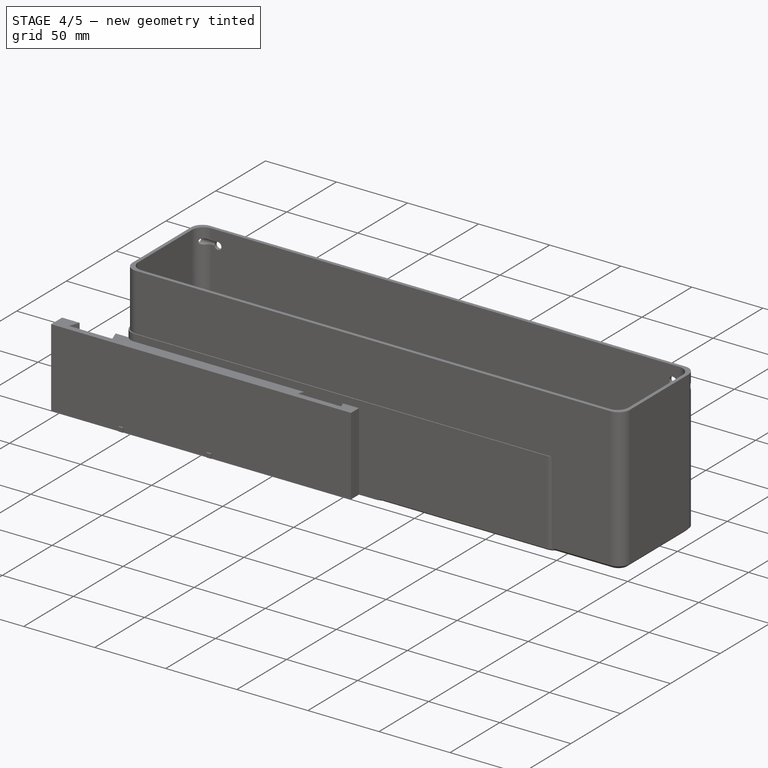
[diagram: stage 4 of 5 — iso view after this stage's code; geometry added in this stage tinted green]
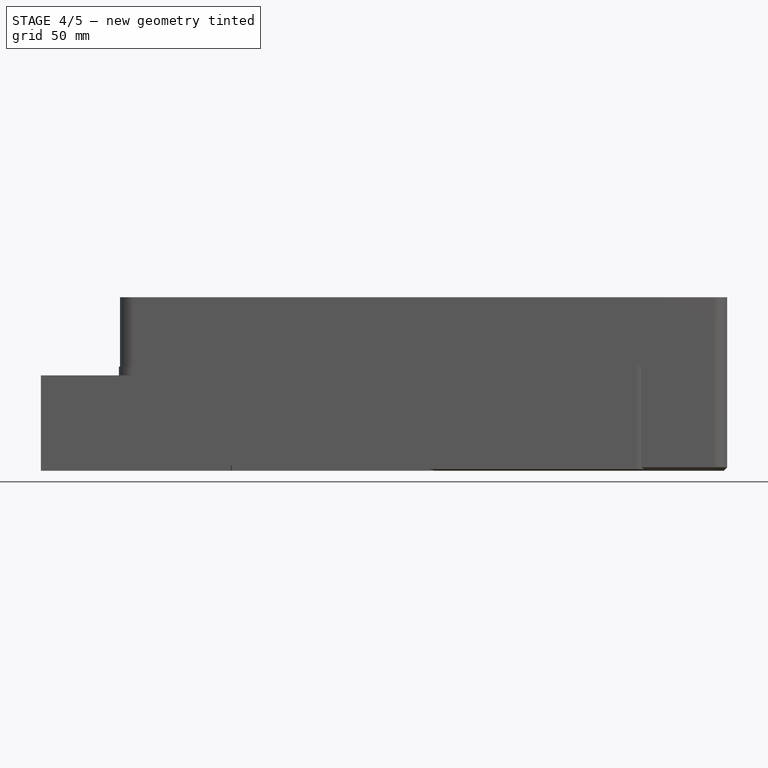
[diagram: stage 4 of 5 — front view after this stage's code; geometry added in this stage tinted green]
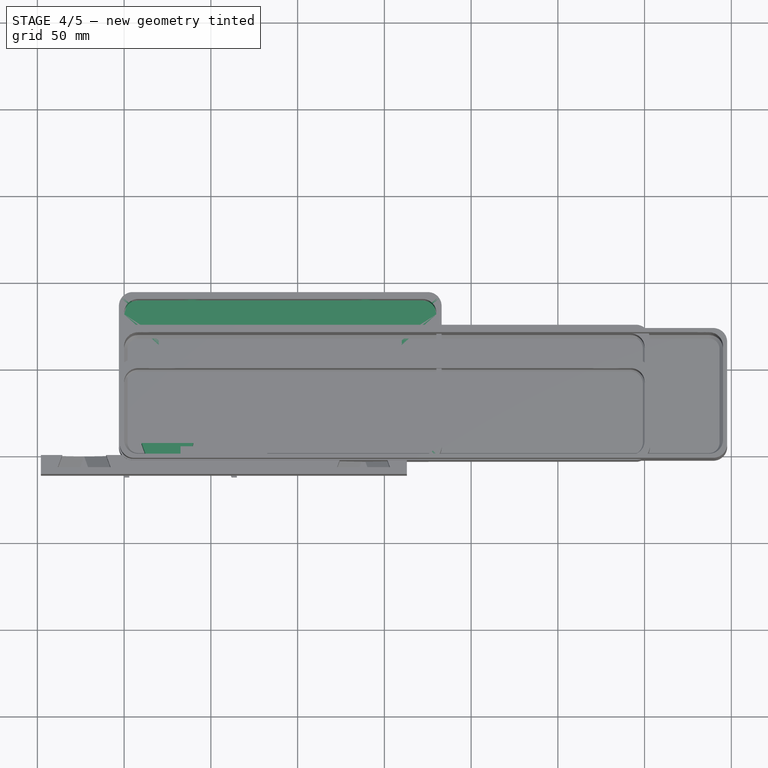
[diagram: stage 4 of 5 — top view after this stage's code; geometry added in this stage tinted green]
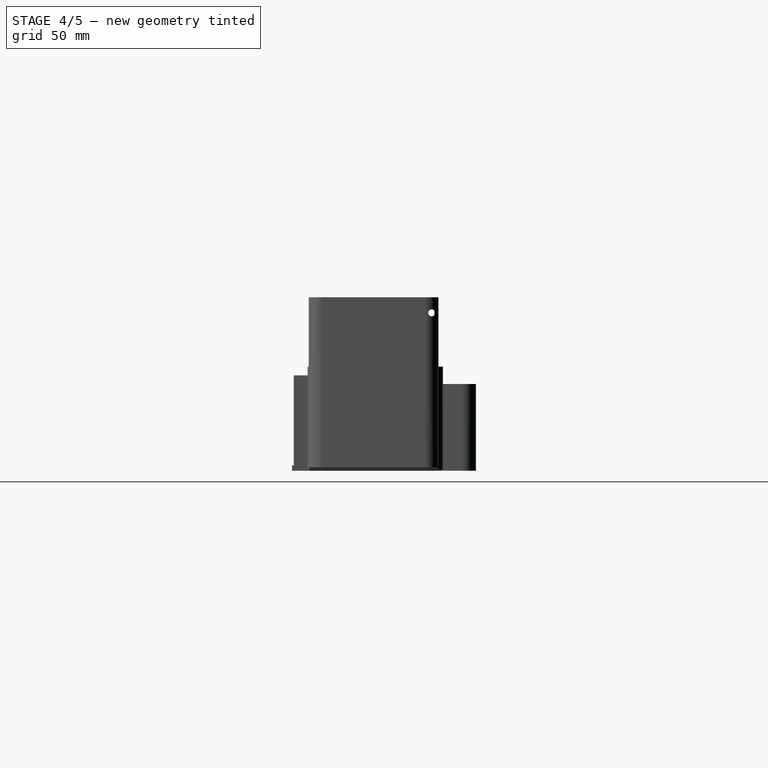
[diagram: stage 4 of 5 — right view after this stage's code; geometry added in this stage tinted green]
FEATURE [Sketcher::SketchObject] Sketch001
  ArcFitTolerance = 1e-06
  AttachmentSupport = -> [XY_Plane001]
  FullyConstrained = true
  MakeInternals = false
  MapMode = 5
  expr: Constraints[26] = <<mea>>.tolerance
  expr: Constraints[27] = <<mea>>.tolerance
  expr: Constraints[28] = <<mea>>.tolerance
  expr: Constraints[29] = <<mea>>.tolerance
  expr: Constraints[45] = <<mea>>.wallMountBaseThickness
  sketch-geometry (20):
    g0: LineSegment StartX=0 StartY=0 StartZ=0 EndX=0 EndY=-3 EndZ=0
    g1: LineSegment StartX=0 StartY=-3 StartZ=0 EndX=50 EndY=-3 EndZ=0
    g2: LineSegment StartX=50 StartY=-3 StartZ=0 EndX=50 EndY=1.8e-15 EndZ=0
    g3: LineSegment StartX=50 StartY=1.6e-15 StartZ=0 EndX=37.4522 EndY=1.6e-15 EndZ=0
    g4: LineSegment StartX=12.5478 StartY=0 StartZ=0 EndX=10 EndY=7 EndZ=0
    g5: LineSegment StartX=10 StartY=7 StartZ=0 EndX=40 EndY=7 EndZ=0
    g6: LineSegment StartX=40 StartY=7 StartZ=0 EndX=37.4522 EndY=1.8e-15 EndZ=0
    g7: LineSegment [constr] StartX=50 StartY=1.6e-15 StartZ=0 EndX=50 EndY=0.15 EndZ=0
    g8: LineSegment StartX=50 StartY=0.15 StartZ=0 EndX=37.6664 EndY=0.15 EndZ=0
    g9: LineSegment StartX=37.6664 StartY=0.15 StartZ=0 EndX=40.2142 EndY=7.15 EndZ=0
    g10: LineSegment [constr] StartX=0 StartY=0 StartZ=0 EndX=0 EndY=0.15 EndZ=0
    g11: LineSegment StartX=0 StartY=0.15 StartZ=0 EndX=12.3336 EndY=0.15 EndZ=0
    g12: LineSegment StartX=12.3336 StartY=0.15 StartZ=0 EndX=9.78578 EndY=7.15 EndZ=0
    g13: LineSegment StartX=9.78578 StartY=7.15 StartZ=0 EndX=40.2142 EndY=7.15 EndZ=0
    g14: LineSegment [constr] StartX=25 StartY=8e-16 StartZ=0 EndX=25 EndY=-3 EndZ=0
    g15: LineSegment StartX=50 StartY=0.15 StartZ=0 EndX=50 EndY=11.15 EndZ=0
    g16: LineSegment StartX=0 StartY=0.15 StartZ=0 EndX=0 EndY=11.15 EndZ=0
    g17: LineSegment StartX=0 StartY=11.15 StartZ=0 EndX=50 EndY=11.15 EndZ=0
    g18: LineSegment StartX=12.5478 StartY=0 StartZ=0 EndX=0 EndY=0 EndZ=0
    g19: LineSegment StartX=12.3336 StartY=0.15 StartZ=0 EndX=37.6664 EndY=0.15 EndZ=0
  constraints (53):
    c: Coincident(g0,g1)
    c: Coincident(g1,g2)
    c: Coincident(g2,g3)
    c: Coincident(g18,g0)
    c: Vertical(g0)
    c: Vertical(g2)
    c: Horizontal(g1)
    c: Horizontal(g3)
    c: Coincident(g0,g-1)
    c: PointOnObject(g4,g18)
    c: Coincident(g6,g5)
    c: Coincident(g7,g2)
    c: Vertical(g7)
    c: Horizontal(g8)
    c: Coincident(g10,g0)
    c: PointOnObject(g10,g-2)
    c: Horizontal(g13)
    c: Coincident(g9,g13)
    c: Coincident(g12,g13)
    c: Coincident(g12,g11)
    c: Coincident(g11,g10)
    c: Coincident(g8,g7)
    c: Coincident(g8,g9)
    c: Coincident(g4,g5)
    c: Parallel(g6,g9)
    c: Parallel(g12,g4)
    c: Distance(g3,g11) = 0.15
    c: Distance(g4,g12) = 0.15
    c: Distance(g13,g5) = 0.15
    c: Distance(g9,g6) = 0.15
    c: Tangent(g8,g11)
    c: Symmetric(g3,g18,g14)
    c: Symmetric(g1,g1,g14)
    c: Symmetric(g4,g6,g14)
    c: Symmetric(g5,g4,g14)
    c: Coincident(g15,g7)
    c: Vertical(g15)
    c: Coincident(g16,g10)
    c: PointOnObject(g16,g-2)
    c: Coincident(g17,g16)
    c: Coincident(g17,g15)
    c: Horizontal(g17)
    c: PointOnObject(g18,g4)
    c: Coincident(g3,g6)
    c: Tangent(g18,g3,g4) = -1.5708
    c: DistanceY(g0,g0) = 3
    c: Angle(g8,g9) = 1.22173
    c: DistanceX(g1,g1) = 50
    c: DistanceX(g5,g5) = 30
    c: Distance(g18,g5) = 7
    c: Distance(g17,g13) = 4
    c: Coincident(g19,g11)
    c: Coincident(g19,g8)
FEATURE [Spreadsheet::Sheet] Spreadsheet  label="mea"
  cells = A1='tolerance; B1(tolerance)==0.15 mm; A2='wallMountBaseThickness; B2(wallMountBaseThickness)==3 mm
FEATURE [PartDesign::Pad] Pad002
  Direction = (0,0,1)
  Length = 50
  Length2 = 10
  Profile = -> Sketch001 [Edge7,Edge8,Edge1,Edge2,Edge3,Edge6,Edge5,Edge4]
  ReferenceAxis = -> Sketch001 [N_Axis]
  Refine = true
  Suppressed = false
  Type = 0
FEATURE [PartDesign::Body] Body001  label="wallMountM"
  AllowCompound = false
  Group = -> [Sketch001,Pad002,Chamfer001]
  Origin = -> Origin001
  Placement = pos=(49,-3,50) rot=(1,0,0;3.14159rad)
  Tip = -> Chamfer001
FEATURE [Sketcher::SketchObject] Sketch003
  ArcFitTolerance = 1e-06
  AttachmentSupport = -> [XY_Plane003]
  FullyConstrained = true
  MakeInternals = false
  MapMode = 5
  expr: Constraints[26] = <<mea001>>.tolerance
  expr: Constraints[27] = <<mea001>>.tolerance
  expr: Constraints[28] = <<mea001>>.tolerance
  expr: Constraints[29] = <<mea001>>.tolerance
  expr: Constraints[45] = <<mea001>>.wallMountBaseThickness
  sketch-geometry (20):
    g0: LineSegment StartX=0 StartY=0 StartZ=0 EndX=0 EndY=-3 EndZ=0
    g1: LineSegment StartX=0 StartY=-3 StartZ=0 EndX=50 EndY=-3 EndZ=0
    g2: LineSegment StartX=50 StartY=-3 StartZ=0 EndX=50 EndY=1.8e-15 EndZ=0
    g3: LineSegment StartX=50 StartY=1.6e-15 StartZ=0 EndX=37.4522 EndY=1.6e-15 EndZ=0
    g4: LineSegment StartX=12.5478 StartY=0 StartZ=0 EndX=10 EndY=7 EndZ=0
    g5: LineSegment StartX=10 StartY=7 StartZ=0 EndX=40 EndY=7 EndZ=0
    g6: LineSegment StartX=40 StartY=7 StartZ=0 EndX=37.4522 EndY=1.8e-15 EndZ=0
    g7: LineSegment [constr] StartX=50 StartY=1.6e-15 StartZ=0 EndX=50 EndY=0.15 EndZ=0
    g8: LineSegment StartX=50 StartY=0.15 StartZ=0 EndX=37.6664 EndY=0.15 EndZ=0
    g9: LineSegment StartX=37.6664 StartY=0.15 StartZ=0 EndX=40.2142 EndY=7.15 EndZ=0
    g10: LineSegment [constr] StartX=0 StartY=0 StartZ=0 EndX=0 EndY=0.15 EndZ=0
    g11: LineSegment StartX=0 StartY=0.15 StartZ=0 EndX=12.3336 EndY=0.15 EndZ=0
    g12: LineSegment StartX=12.3336 StartY=0.15 StartZ=0 EndX=9.78578 EndY=7.15 EndZ=0
    g13: LineSegment StartX=9.78578 StartY=7.15 StartZ=0 EndX=40.2142 EndY=7.15 EndZ=0
    g14: LineSegment [constr] StartX=25 StartY=8e-16 StartZ=0 EndX=25 EndY=-3 EndZ=0
    g15: LineSegment StartX=50 StartY=0.15 StartZ=0 EndX=50 EndY=11.15 EndZ=0
    g16: LineSegment StartX=0 StartY=0.15 StartZ=0 EndX=0 EndY=11.15 EndZ=0
    g17: LineSegment StartX=0 StartY=11.15 StartZ=0 EndX=50 EndY=11.15 EndZ=0
    g18: LineSegment StartX=12.5478 StartY=0 StartZ=0 EndX=0 EndY=0 EndZ=0
    g19: LineSegment StartX=12.3336 StartY=0.15 StartZ=0 EndX=37.6664 EndY=0.15 EndZ=0
  constraints (53):
    c: Coincident(g0,g1)
    c: Coincident(g1,g2)
    c: Coincident(g2,g3)
    c: Coincident(g18,g0)
    c: Vertical(g0)
    c: Vertical(g2)
    c: Horizontal(g1)
    c: Horizontal(g3)
    c: Coincident(g0,g-1)
    c: PointOnObject(g4,g18)
    c: Coincident(g6,g5)
    c: Coincident(g7,g2)
    c: Vertical(g7)
    c: Horizontal(g8)
    c: Coincident(g10,g0)
    c: PointOnObject(g10,g-2)
    c: Horizontal(g13)
    c: Coincident(g9,g13)
    c: Coincident(g12,g13)
    c: Coincident(g12,g11)
    c: Coincident(g11,g10)
    c: Coincident(g8,g7)
    c: Coincident(g8,g9)
    c: Coincident(g4,g5)
    c: Parallel(g6,g9)
    c: Parallel(g12,g4)
    c: Distance(g3,g11) = 0.15
    c: Distance(g4,g12) = 0.15
    c: Distance(g13,g5) = 0.15
    c: Distance(g9,g6) = 0.15
    c: Tangent(g8,g11)
    c: Symmetric(g3,g18,g14)
    c: Symmetric(g1,g1,g14)
    c: Symmetric(g4,g6,g14)
    c: Symmetric(g5,g4,g14)
    c: Coincident(g15,g7)
    c: Vertical(g15)
    c: Coincident(g16,g10)
    c: PointOnObject(g16,g-2)
    c: Coincident(g17,g16)
    c: Coincident(g17,g15)
    c: Horizontal(g17)
    c: PointOnObject(g18,g4)
    c: Coincident(g3,g6)
    c: Tangent(g18,g3,g4) = -1.5708
    c: DistanceY(g0,g0) = 3
    c: Angle(g8,g9) = 1.22173
    c: DistanceX(g1,g1) = 50
    c: DistanceX(g5,g5) = 30
    c: Distance(g18,g5) = 7
    c: Distance(g17,g13) = 4
    c: Coincident(g19,g11)
    c: Coincident(g19,g8)
FEATURE [PartDesign::Pad] Pad005
  Direction = (0,0,1)
  Length = 50
  Length2 = 10
  Profile = -> Sketch003 [Edge7,Edge8,Edge1,Edge2,Edge3,Edge6,Edge5,Edge4]
  ReferenceAxis = -> Sketch003 [N_Axis]
  Refine = true
  Suppressed = false
  Type = 0
FEATURE [PartDesign::Chamfer] Chamfer002
  Angle = 45
  Base = -> Pad005 [Edge24,Edge7]
  BaseFeature = -> Pad005
  ChamferType = 0
  FlipDirection = false
  Refine = true
  Size = 11.6
  Size2 = 1
  SupportTransform = false
  Suppressed = false
  UseAllEdges = false
FEATURE [PartDesign::Pad] Pad007
  BaseFeature = -> Pad006
  Direction = (0,0,1)
  Length = 3
  Length2 = 10
  Profile = -> Sketch004 [Edge8,Edge5,Edge7,Edge6]
  ReferenceAxis = -> Sketch004 [N_Axis]
  Refine = true
  Suppressed = false
  Type = 0
FEATURE [PartDesign::Fillet] Fillet002
  Base = -> Pad007 [Edge15,Edge11,Edge24,Edge23,Edge18,Edge13,Edge10,Edge19]
  BaseFeature = -> Pad007
  Radius = 8
  Refine = true
  SupportTransform = false
  Suppressed = false
  UseAllEdges = false
FEATURE [PartDesign::SubtractiveBox] Box001
  AttacherType = Attacher::AttachEngine3D
  AttachmentOffset = pos=(20,20,0) rot=(0,0,1;0rad)
  AttachmentSupport = -> [XY_Plane004]
  BaseFeature = -> Fillet002
  Height = 10
  Length = 50
  MapMode = 5
  Placement = pos=(20,20,0) rot=(0,0,1;0rad)
  Refine = true
  Suppressed = false
  Width = 12
FEATURE [PartDesign::Fillet] Fillet003
  Base = -> Box001 [Edge57,Edge60,Edge59,Edge58]
  BaseFeature = -> Box001
  Placement = pos=(20,20,0) rot=(0,0,1;0rad)
  Radius = 5
  Refine = true
  SupportTransform = false
  Suppressed = false
  UseAllEdges = false
FEATURE [PartDesign::MultiTransform] MultiTransform001
  BaseFeature = -> Fillet003
  Originals = -> [Box001,Fillet003]
  Placement = pos=(20,20,0) rot=(0,0,1;0rad)
  Refine = true
  Suppressed = false
  TransformMode = 0
  Transformations = -> [LinearPattern002,LinearPattern003]
FEATURE [Spreadsheet::Sheet] Spreadsheet002  label="mea002"
  cells = A1='tolerance; B1(tolerance)==0.15 mm; A2='wallMountBaseThickness; B2(wallMountBaseThickness)==3 mm
FEATURE [Spreadsheet::Sheet] Spreadsheet003  label="mea003"
  cells = A1='tolerance; B1(tolerance)==0.15 mm; A2='wallMountBaseThickness; B2(wallMountBaseThickness)==3 mm
FEATURE [Sketcher::SketchObject] Sketch005
  ArcFitTolerance = 1e-06
  AttachmentSupport = -> [MultiTransform001]
  ExternalGeometry = -> [MultiTransform001]
  FullyConstrained = true
  MakeInternals = false
  MapMode = 5
  Placement = pos=(20,94,0) rot=(0,0.707107,0.707107;3.14159rad)
  sketch-geometry (6):
    g0: ArcOfCircle CenterX=-19.25 CenterY=19.9813 CenterZ=0 NormalX=0 NormalY=0 NormalZ=1 AngleXU=0 Radius=5.5 StartAngle=1.99225 EndAngle=7.43252
    g1: LineSegment StartX=-21.5 StartY=25 StartZ=0 EndX=-21.5 EndY=32 EndZ=0
    g2: LineSegment StartX=-17 StartY=25 StartZ=0 EndX=-17 EndY=32 EndZ=0
    g3: ArcOfCircle CenterX=-19.25 CenterY=32 CenterZ=0 NormalX=0 NormalY=0 NormalZ=1 AngleXU=0 Radius=2.25 StartAngle=1.8e-15 EndAngle=3.14159
    g4: LineSegment [constr] StartX=-21.5 StartY=32 StartZ=0 EndX=-17 EndY=32 EndZ=0
    g5: LineSegment [constr] StartX=-21.5 StartY=25 StartZ=0 EndX=-17 EndY=25 EndZ=0
  constraints (18):
    c: Vertical(g1)
    c: Vertical(g2)
    c: Coincident(g3,g2)
    c: Coincident(g3,g1)
    c: Coincident(g4,g1)
    c: Coincident(g4,g2)
    c: Horizontal(g4)
    c: PointOnObject(g3,g4)
    c: Coincident(g5,g1)
    c: Coincident(g5,g2)
    c: Horizontal(g5)
    c: Diameter(g0) = 11
    c: Radius(g3) = 2.25
    c: DistanceY(g2,g2) = 7
    c: Coincident(g0,g2)
    c: Coincident(g0,g1)
    c: Distance(g2,g-4) = 32
    c: Distance(g2,g-3) = 18
FEATURE [PartDesign::Pocket] Pocket
  BaseFeature = -> MultiTransform001
  Direction = (0,-1,2e-16)
  Length = 5
  Length2 = 5
  Placement = pos=(20,20,0) rot=(0,0,1;0rad)
  Profile = -> Sketch005
  ReferenceAxis = -> Sketch005 [N_Axis]
  Refine = true
  Suppressed = false
  Type = 0
FEATURE [PartDesign::Fillet] Fillet004
  Base = -> Pocket [Edge154,Edge153]
  BaseFeature = -> Pocket
  Placement = pos=(20,20,0) rot=(0,0,1;0rad)
  Radius = 1
  Refine = true
  SupportTransform = false
  Suppressed = false
  UseAllEdges = false
FEATURE [PartDesign::LinearPattern] LinearPattern004
  BaseFeature = -> Fillet004
  Direction = -> X_Axis004
  Length = 100
  Mode = 0
  Occurrences = 2
  Offset = 100
  Originals = -> [Pocket,Fillet004]
  Placement = pos=(20,20,0) rot=(0,0,1;0rad)
  Refine = true
  Suppressed = false
  TransformMode = 0
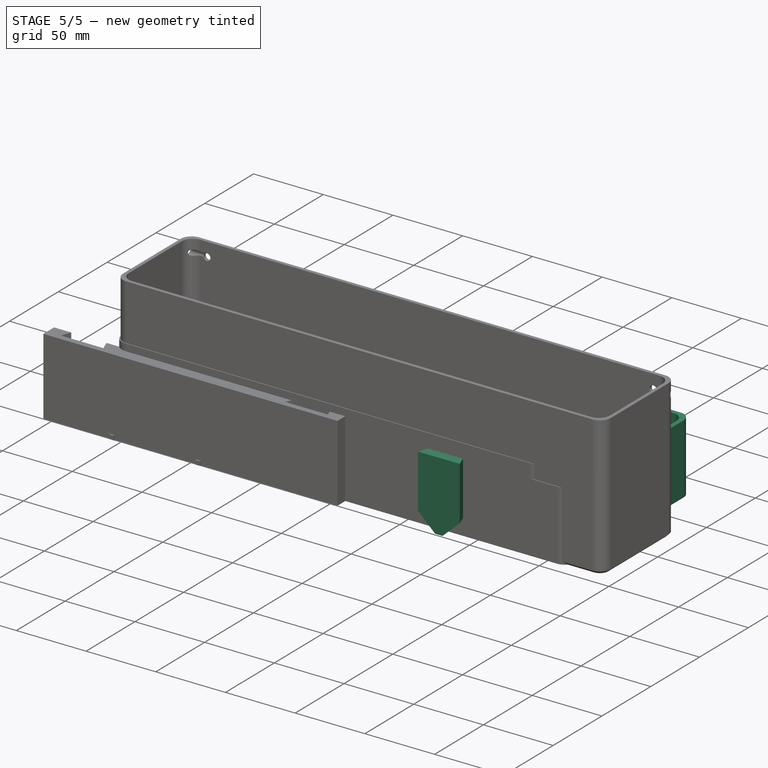
[diagram: stage 5 of 5 — iso view after this stage's code; geometry added in this stage tinted green]
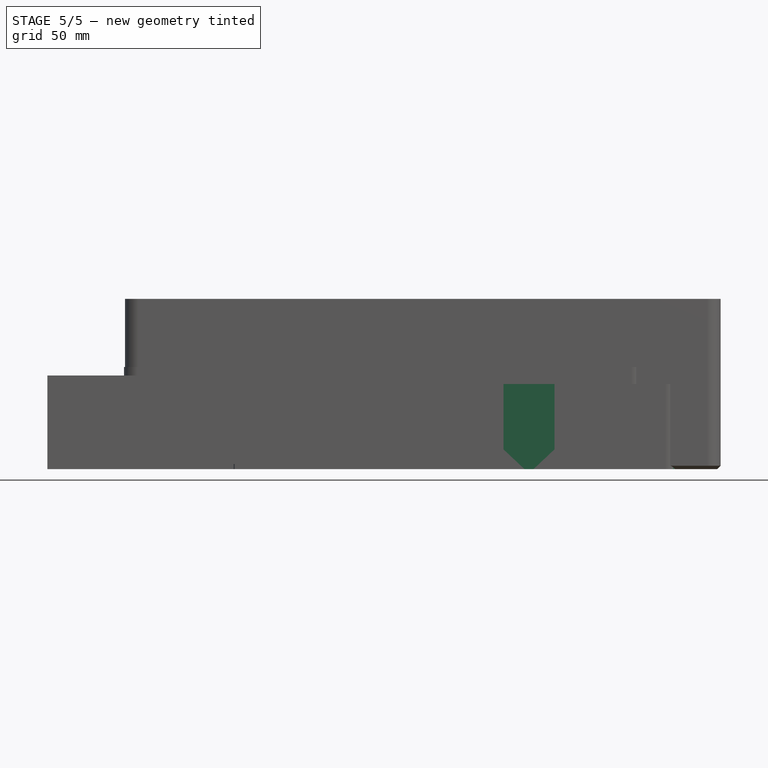
[diagram: stage 5 of 5 — front view after this stage's code; geometry added in this stage tinted green]
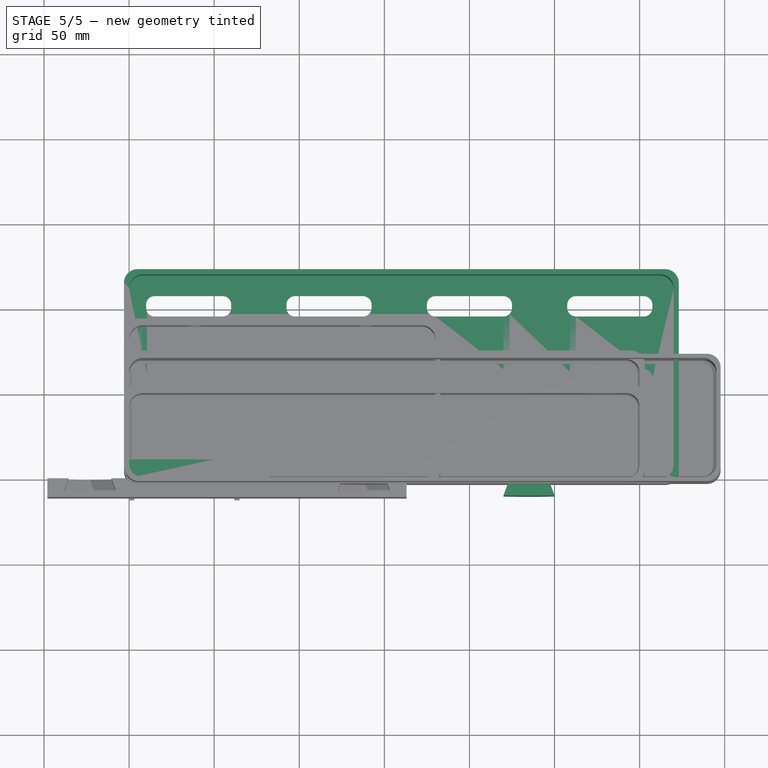
[diagram: stage 5 of 5 — top view after this stage's code; geometry added in this stage tinted green]
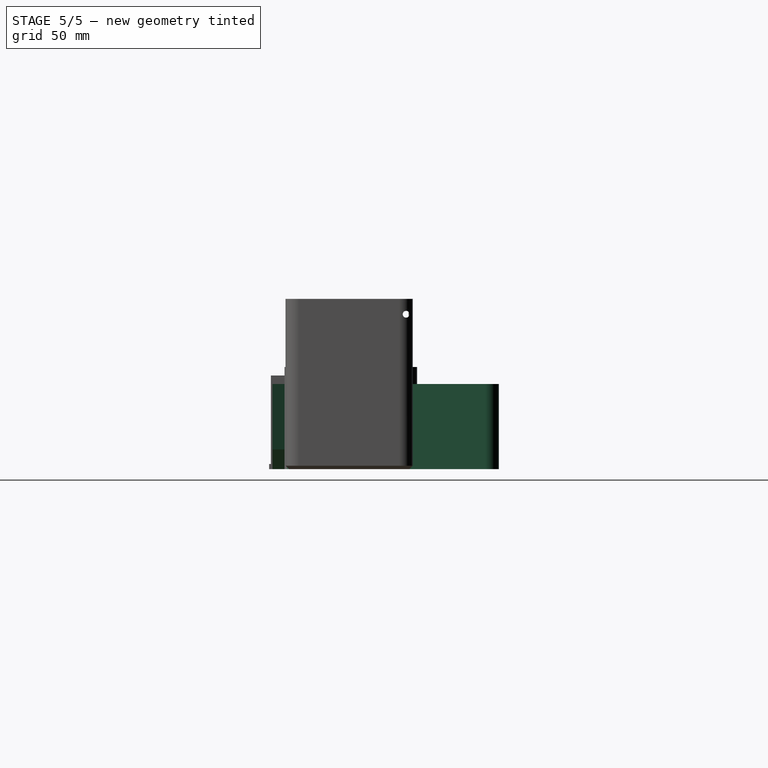
[diagram: stage 5 of 5 — right view after this stage's code; geometry added in this stage tinted green]
FEATURE [Sketcher::SketchObject] Sketch
  ArcFitTolerance = 1e-06
  AttachmentSupport = -> [XY_Plane]
  FullyConstrained = false
  MakeInternals = false
  MapMode = 5
  sketch-geometry (12):
    g0: LineSegment StartX=0 StartY=0 StartZ=0 EndX=320 EndY=0 EndZ=0
    g1: LineSegment StartX=320 StartY=0 StartZ=0 EndX=320 EndY=120 EndZ=0
    g2: LineSegment StartX=320 StartY=120 StartZ=0 EndX=0 EndY=120 EndZ=0
    g3: LineSegment StartX=0 StartY=120 StartZ=0 EndX=0 EndY=0 EndZ=0
    g4: LineSegment StartX=-3 StartY=-3 StartZ=0 EndX=323 EndY=-3 EndZ=0
    g5: LineSegment StartX=323 StartY=-3 StartZ=0 EndX=323 EndY=123 EndZ=0
    g6: LineSegment StartX=323 StartY=123 StartZ=0 EndX=-3 EndY=123 EndZ=0
    g7: LineSegment StartX=-3 StartY=123 StartZ=0 EndX=-3 EndY=-3 EndZ=0
    g8: LineSegment [constr] StartX=135.611 StartY=123 StartZ=0 EndX=135.611 EndY=120 EndZ=0
    g9: LineSegment [constr] StartX=320 StartY=72.872 StartZ=0 EndX=323 EndY=72.872 EndZ=0
    g10: LineSegment [constr] StartX=139.696 StartY=0 StartZ=0 EndX=139.696 EndY=-3 EndZ=0
    g11: LineSegment [constr] StartX=-9e-16 StartY=76.4331 StartZ=0 EndX=-3 EndY=76.4331 EndZ=0
  constraints (35):
    c: Coincident(g0,g1)
    c: Coincident(g1,g2)
    c: Coincident(g2,g3)
    c: Coincident(g3,g0)
    c: Horizontal(g0)
    c: Horizontal(g2)
    c: Vertical(g1)
    c: Vertical(g3)
    c: Coincident(g0,g-1)
    c: DistanceX(g0,g0) = 320
    c: DistanceY(g3,g3) = 120
    c: Coincident(g4,g5)
    c: Coincident(g5,g6)
    c: Coincident(g6,g7)
    c: Coincident(g7,g4)
    c: Horizontal(g4)
    c: Horizontal(g6)
    c: Vertical(g5)
    c: Vertical(g7)
    c: PointOnObject(g8,g6)
    c: PointOnObject(g8,g2)
    c: Vertical(g8)
    c: PointOnObject(g9,g1)
    c: PointOnObject(g9,g5)
    c: Horizontal(g9)
    c: Distance(g8,g8) = 3
    c: Distance(g9,g9) = 3
    c: PointOnObject(g10,g0)
    c: PointOnObject(g10,g4)
    c: Vertical(g10)
    c: PointOnObject(g11,g3)
    c: PointOnObject(g11,g7)
    c: Horizontal(g11)
    c: Distance(g11,g11) = 3
    c: Distance(g10,g10) = 3
FEATURE [PartDesign::Pad] Pad
  Direction = (0,0,1)
  Length = 50
  Length2 = 10
  Profile = -> Sketch
  ReferenceAxis = -> Sketch [N_Axis]
  Refine = true
  Suppressed = false
  Type = 0
FEATURE [PartDesign::Pad] Pad001
  BaseFeature = -> Pad
  Direction = (0,0,1)
  Length = 3
  Length2 = 10
  Profile = -> Sketch [Edge8,Edge5,Edge7,Edge6]
  ReferenceAxis = -> Sketch [N_Axis]
  Refine = true
  Suppressed = false
  Type = 0
FEATURE [PartDesign::Fillet] Fillet
  Base = -> Pad001 [Edge18,Edge19,Edge15,Edge13,Edge23,Edge24,Edge11,Edge10]
  BaseFeature = -> Pad001
  Radius = 8
  Refine = true
  SupportTransform = false
  Suppressed = false
  UseAllEdges = false
FEATURE [PartDesign::SubtractiveBox] Box
  AttacherType = Attacher::AttachEngine3D
  AttachmentOffset = pos=(10,10,0) rot=(0,0,1;0rad)
  AttachmentSupport = -> [XY_Plane]
  BaseFeature = -> Fillet
  Height = 10
  Length = 50
  MapMode = 5
  Placement = pos=(10,10,0) rot=(0,0,1;0rad)
  Refine = true
  Suppressed = false
  Width = 12
FEATURE [PartDesign::Fillet] Fillet001
  Base = -> Box [Edge57,Edge60,Edge59,Edge58]
  BaseFeature = -> Box
  Placement = pos=(10,10,0) rot=(0,0,1;0rad)
  Radius = 5
  Refine = true
  SupportTransform = false
  Suppressed = false
  UseAllEdges = false
FEATURE [PartDesign::LinearPattern] LinearPattern
  Direction = -> X_Axis
  Length = 330
  Mode = 0
  Occurrences = 5
  Offset = 82.5
  Placement = pos=(10,10,0) rot=(0,0,1;0rad)
  Refine = true
  Suppressed = false
  TransformMode = 0
FEATURE [PartDesign::LinearPattern] LinearPattern001
  Direction = -> Y_Axis
  Length = 86
  Mode = 0
  Occurrences = 3
  Offset = 43
  Placement = pos=(10,10,0) rot=(0,0,1;0rad)
  Refine = true
  Suppressed = false
  TransformMode = 0
FEATURE [PartDesign::MultiTransform] MultiTransform
  BaseFeature = -> Fillet001
  Originals = -> [Box,Fillet001]
  Placement = pos=(10,10,0) rot=(0,0,1;0rad)
  Refine = true
  Suppressed = false
  TransformMode = 0
  Transformations = -> [LinearPattern,LinearPattern001]
FEATURE [Sketcher::SketchObject] Sketch002
  ArcFitTolerance = 1e-06
  AttachmentSupport = -> [XY_Plane002]
  FullyConstrained = true
  MakeInternals = false
  MapMode = 5
  expr: Constraints[26] = Sketch001.Constraints[26]
  expr: Constraints[27] = Sketch001.Constraints[27]
  expr: Constraints[28] = Sketch001.Constraints[28]
  expr: Constraints[29] = Sketch001.Constraints[29]
  expr: Constraints[45] = Sketch001.Constraints[45]
  expr: Constraints[46] = Sketch001.Constraints[46]
  expr: Constraints[47] = Sketch001.Constraints[47]
  expr: Constraints[48] = Sketch001.Constraints[48]
  expr: Constraints[49] = Sketch001.Constraints[49]
  expr: Constraints[50] = Sketch001.Constraints[50]
  sketch-geometry (20):
    g0: LineSegment StartX=0 StartY=0 StartZ=0 EndX=0 EndY=-3 EndZ=0
    g1: LineSegment StartX=0 StartY=-3 StartZ=0 EndX=50 EndY=-3 EndZ=0
    g2: LineSegment StartX=50 StartY=-3 StartZ=0 EndX=50 EndY=1.8e-15 EndZ=0
    g3: LineSegment StartX=50 StartY=1.8e-15 StartZ=0 EndX=37.4522 EndY=1.8e-15 EndZ=0
    g4: LineSegment StartX=12.5478 StartY=0 StartZ=0 EndX=10 EndY=7 EndZ=0
    g5: LineSegment StartX=10 StartY=7 StartZ=0 EndX=40 EndY=7 EndZ=0
    g6: LineSegment StartX=40 StartY=7 StartZ=0 EndX=37.4522 EndY=1.8e-15 EndZ=0
    g7: LineSegment [constr] StartX=50 StartY=1.8e-15 StartZ=0 EndX=50 EndY=0.15 EndZ=0
    g8: LineSegment StartX=50 StartY=0.15 StartZ=0 EndX=37.6664 EndY=0.15 EndZ=0
    g9: LineSegment StartX=37.6664 StartY=0.15 StartZ=0 EndX=40.2142 EndY=7.15 EndZ=0
    g10: LineSegment [constr] StartX=0 StartY=0 StartZ=0 EndX=0 EndY=0.15 EndZ=0
    g11: LineSegment StartX=0 StartY=0.15 StartZ=0 EndX=12.3336 EndY=0.15 EndZ=0
    g12: LineSegment StartX=12.3336 StartY=0.15 StartZ=0 EndX=9.78578 EndY=7.15 EndZ=0
    g13: LineSegment StartX=9.78578 StartY=7.15 StartZ=0 EndX=40.2142 EndY=7.15 EndZ=0
    g14: LineSegment [constr] StartX=25 StartY=8e-16 StartZ=0 EndX=25 EndY=-3 EndZ=0
    g15: LineSegment StartX=50 StartY=0.15 StartZ=0 EndX=50 EndY=11.15 EndZ=0
    g16: LineSegment StartX=0 StartY=0.15 StartZ=0 EndX=0 EndY=11.15 EndZ=0
    g17: LineSegment StartX=0 StartY=11.15 StartZ=0 EndX=50 EndY=11.15 EndZ=0
    g18: LineSegment StartX=12.5478 StartY=0 StartZ=0 EndX=0 EndY=0 EndZ=0
    g19: LineSegment StartX=12.3336 StartY=0.15 StartZ=0 EndX=37.6664 EndY=0.15 EndZ=0
  constraints (54):
    c: Coincident(g0,g1)
    c: Coincident(g1,g2)
    c: Coincident(g2,g3)
    c: Coincident(g18,g0)
    c: Vertical(g0)
    c: Vertical(g2)
    c: Horizontal(g1)
    c: Horizontal(g3)
    c: Coincident(g0,g-1)
    c: PointOnObject(g4,g18)
    c: Coincident(g6,g5)
    c: Coincident(g7,g2)
    c: Vertical(g7)
    c: Horizontal(g8)
    c: Coincident(g10,g0)
    c: PointOnObject(g10,g-2)
    c: Horizontal(g13)
    c: Coincident(g9,g13)
    c: Coincident(g12,g13)
    c: Coincident(g12,g11)
    c: Coincident(g11,g10)
    c: Coincident(g8,g7)
    c: Coincident(g8,g9)
    c: Coincident(g4,g5)
    c: Parallel(g6,g9)
    c: Parallel(g12,g4)
    c: Distance(g3,g11) = 0.15
    c: Distance(g4,g12) = 0.15
    c: Distance(g13,g5) = 0.15
    c: Distance(g9,g6) = 0.15
    c: Tangent(g8,g11)
    c: Symmetric(g3,g18,g14)
    c: Symmetric(g1,g1,g14)
    c: Symmetric(g4,g6,g14)
    c: Symmetric(g5,g4,g14)
    c: Coincident(g15,g7)
    c: Vertical(g15)
    c: Coincident(g16,g10)
    c: PointOnObject(g16,g-2)
    c: Coincident(g17,g16)
    c: Coincident(g17,g15)
    c: Horizontal(g17)
    c: PointOnObject(g18,g4)
    c: Coincident(g3,g6)
    c: Tangent(g18,g3,g4) = -1.5708
    c: DistanceY(g0,g0) = 3
    c: Angle(g8,g9) = 1.22173
    c: DistanceX(g1,g1) = 50
    c: DistanceX(g5,g5) = 30
    c: Distance(g18,g5) = 7
    c: Distance(g17,g13) = 4
    c: Coincident(g19,g11)
    c: Coincident(g19,g8)
    c: DistanceY(g16,g16) = 11
FEATURE [PartDesign::Pad] Pad003
  Direction = (0,0,1)
  Length = 50
  Length2 = 10
  Profile = -> Sketch002 [Edge11,Edge10,Edge9,Edge16,Edge15,Edge14,Edge13,Edge12]
  ReferenceAxis = -> Sketch002 [N_Axis]
  Refine = true
  Suppressed = false
  Type = 0
FEATURE [PartDesign::Pad] Pad004
  BaseFeature = -> Pad003
  Direction = (0,0,1)
  Length = 55
  Length2 = -50
  Profile = -> Sketch002 [Edge17,Edge13,Edge12,Edge11,Edge10,Edge9]
  ReferenceAxis = -> Sketch002 [N_Axis]
  Refine = true
  Suppressed = false
  Type = 4
FEATURE [PartDesign::Chamfer] Chamfer
  Angle = 45
  Base = -> Pad004 [Edge21,Edge17]
  BaseFeature = -> Pad004
  ChamferType = 0
  FlipDirection = false
  Refine = true
  Size = 11.9
  Size2 = 1
  SupportTransform = false
  Suppressed = false
  UseAllEdges = false
FEATURE [PartDesign::Body] Body002  label="wallMountF"
  AllowCompound = false
  Group = -> [Sketch002,Pad003,Pad004,Chamfer]
  Origin = -> Origin002
  Placement = pos=(49,-3,50) rot=(1,0,0;3.14159rad)
  Tip = -> Chamfer
FEATURE [PartDesign::Chamfer] Chamfer001
  Angle = 45
  Base = -> Pad002 [Edge24,Edge7]
  BaseFeature = -> Pad002
  ChamferType = 0
  FlipDirection = false
  Refine = true
  Size = 11.6
  Size2 = 1
  SupportTransform = false
  Suppressed = false
  UseAllEdges = false
FEATURE [PartDesign::Body] Body003  label="wallMountM001"
  AllowCompound = false
  Group = -> [Sketch003,Pad005,Chamfer002]
  Origin = -> Origin003
  Placement = pos=(210,-3,50) rot=(1,0,0;3.14159rad)
  Tip = -> Chamfer002
FEATURE [Spreadsheet::Sheet] Spreadsheet001  label="mea001"
  cells = A1='tolerance; B1(tolerance)==0.15 mm; A2='wallMountBaseThickness; B2(wallMountBaseThickness)==3 mm
FEATURE [PartDesign::Boolean] Boolean
  BaseFeature = -> MultiTransform
  Group = -> [Body001,Body003]
  Refine = true
  Suppressed = false
  Type = 0
  UsePlacement = true
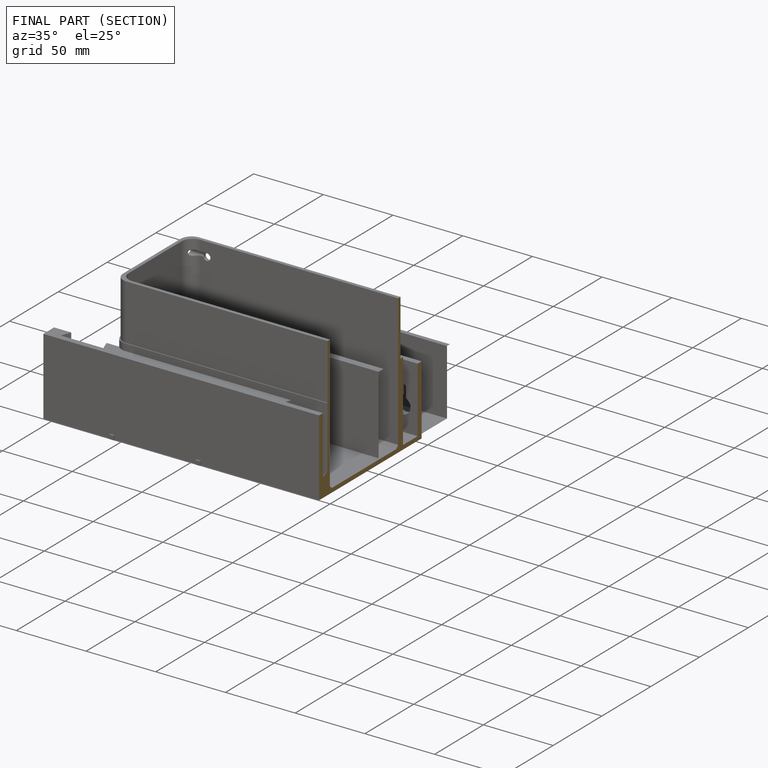
[diagram: finished part — half-section view (interior)]
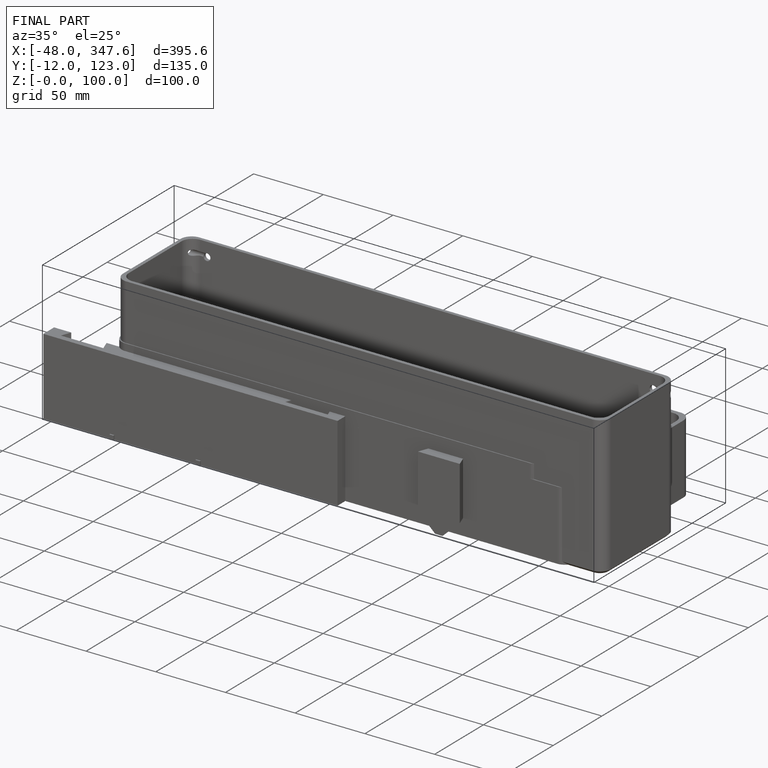
[diagram: finished part — iso view with bounding-box wireframe]
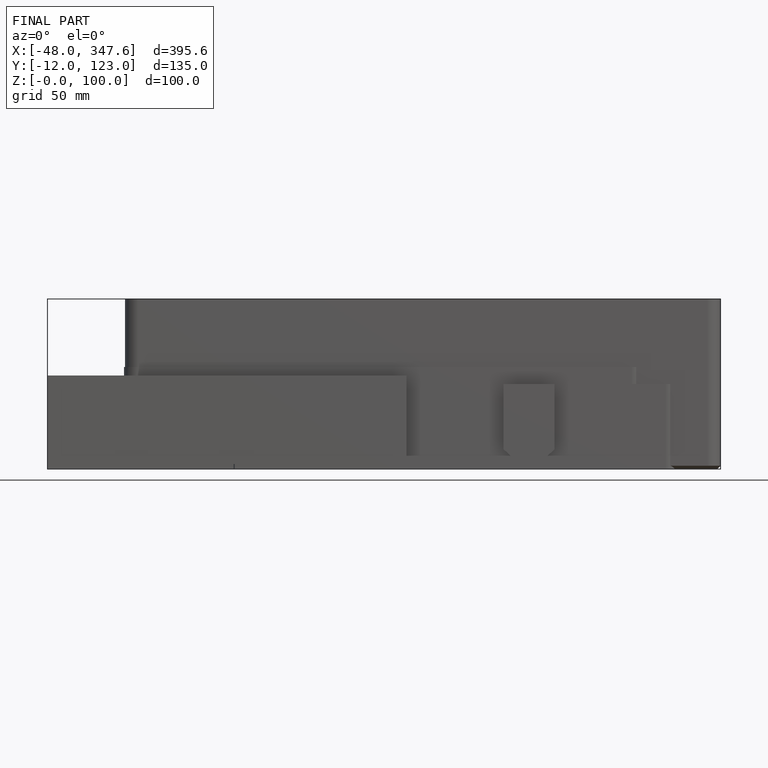
[diagram: finished part — front view with bounding-box wireframe]
